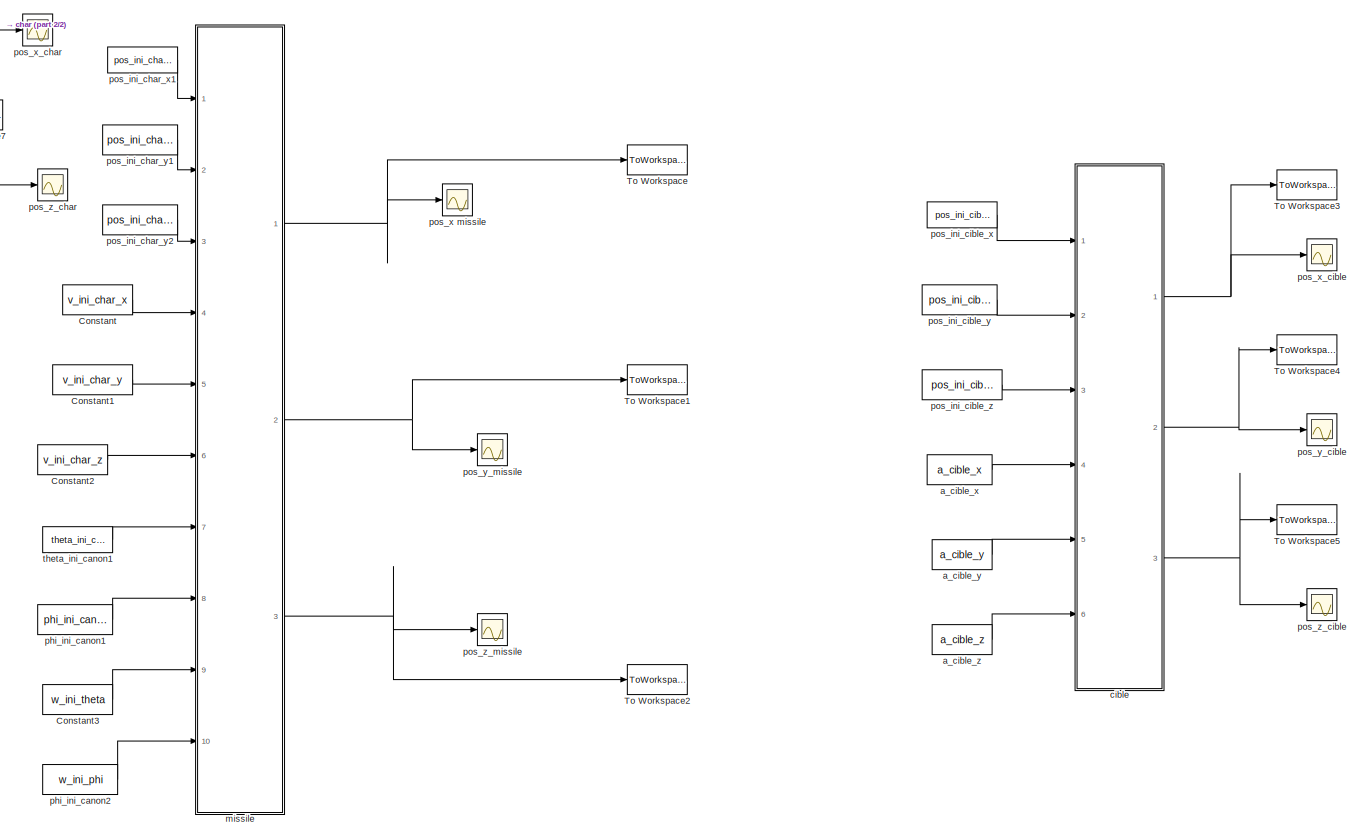
[diagram: root canvas - part 1/2, center side, full height]
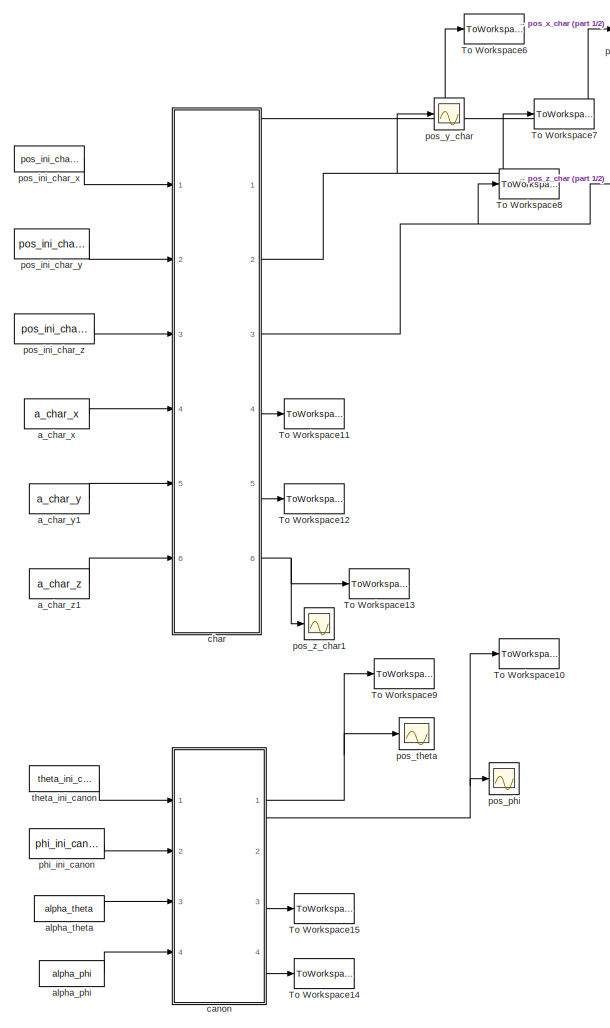
[diagram: root canvas - part 2/2, left side, full height]
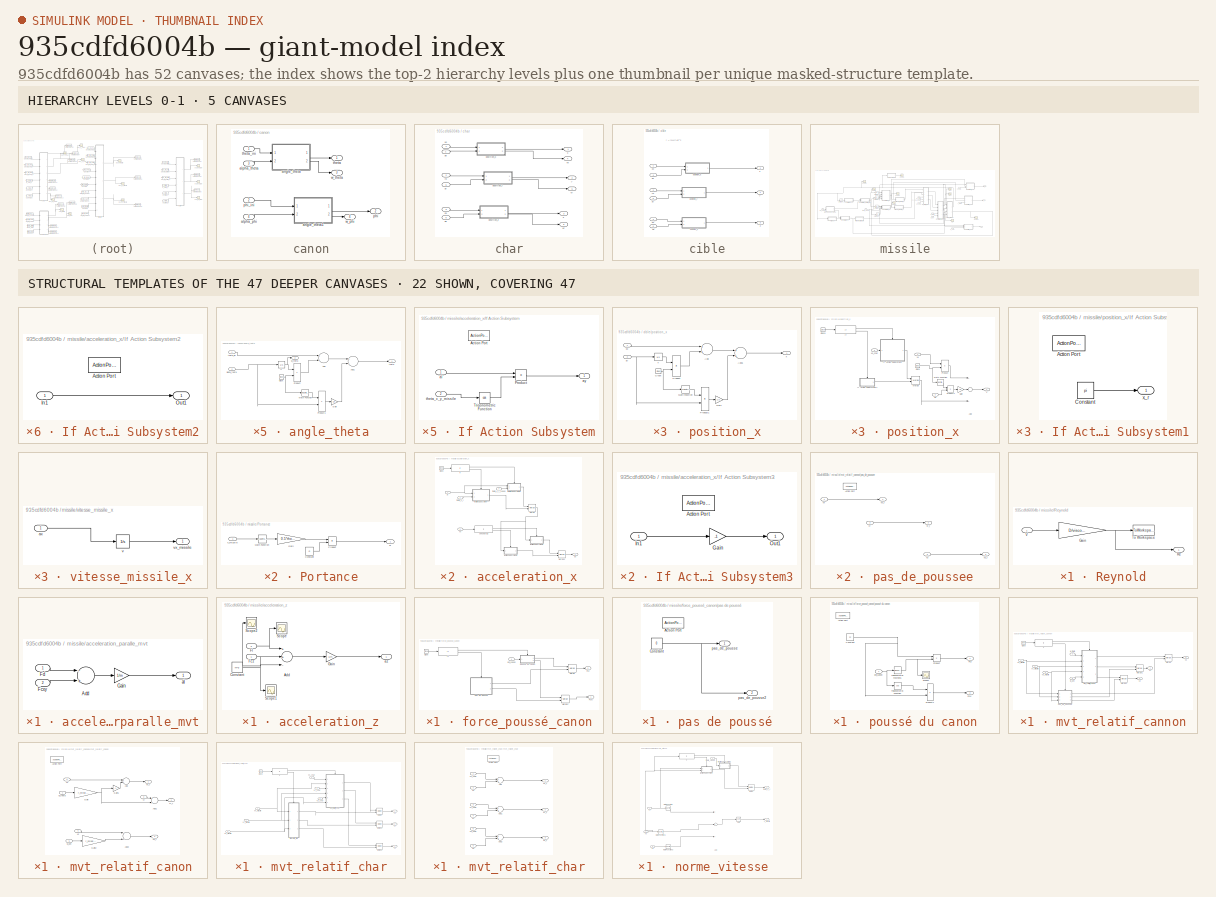
[diagram: thumbnail index - top-2 hierarchy levels (5 canvases) + 22 structural-template representatives of the remaining 47 canvases]
MODEL slx_935cdfd6004b
KIND model
CONFIG AbsTol = auto
CONFIG EnableMultiTasking = off
CONFIG FixedStep = auto
CONFIG InitFcn = variable
CONFIG MaxStep = auto
CONFIG MinStep = auto
CONFIG RelTol = 1e-2
CONFIG SampleTimeConstraint = Unconstrained
CONFIG Solver = VariableStepAuto
CONFIG SolverName = VariableStepAuto
CONFIG StartTime = 0.0
CONFIG StopTime = 1
BLOCK [Constant] Constant
  Value = v_ini_char_x
BLOCK [Constant] Constant1
  Value = v_ini_char_y
BLOCK [Constant] Constant2
  Value = v_ini_char_z
BLOCK [Constant] Constant3
  Value = w_ini_theta
BLOCK [ToWorkspace] To Workspace
  FixptAsFi = on
  MaxDataPoints = inf
  Ports = [1]
  SampleTime = -1
  Save2DSignal = 3-D array (concatenate along third dimension)
  SaveFormat = Timeseries
  VariableName = pos_missile_x
BLOCK [ToWorkspace] To Workspace1
  FixptAsFi = on
  MaxDataPoints = inf
  Ports = [1]
  SampleTime = -1
  Save2DSignal = 3-D array (concatenate along third dimension)
  SaveFormat = Timeseries
  VariableName = pos_missile_y
BLOCK [ToWorkspace] To Workspace10
  FixptAsFi = on
  MaxDataPoints = inf
  Ports = [1]
  SampleTime = -1
  Save2DSignal = 3-D array (concatenate along third dimension)
  SaveFormat = Timeseries
  VariableName = phi_canon
BLOCK [ToWorkspace] To Workspace11
  FixptAsFi = on
  MaxDataPoints = inf
  Ports = [1]
  SampleTime = -1
  Save2DSignal = 3-D array (concatenate along third dimension)
  SaveFormat = Timeseries
  VariableName = vx_char
BLOCK [ToWorkspace] To Workspace12
  FixptAsFi = on
  MaxDataPoints = inf
  Ports = [1]
  SampleTime = -1
  Save2DSignal = 3-D array (concatenate along third dimension)
  SaveFormat = Timeseries
  VariableName = vy_char
BLOCK [ToWorkspace] To Workspace13
  FixptAsFi = on
  MaxDataPoints = inf
  Ports = [1]
  SampleTime = -1
  Save2DSignal = 3-D array (concatenate along third dimension)
  SaveFormat = Timeseries
  VariableName = vz_char
BLOCK [ToWorkspace] To Workspace14
  FixptAsFi = on
  MaxDataPoints = inf
  Ports = [1]
  SampleTime = -1
  Save2DSignal = 3-D array (concatenate along third dimension)
  SaveFormat = Timeseries
  VariableName = w_phi
BLOCK [ToWorkspace] To Workspace15
  FixptAsFi = on
  MaxDataPoints = inf
  Ports = [1]
  SampleTime = -1
  Save2DSignal = 3-D array (concatenate along third dimension)
  SaveFormat = Timeseries
  VariableName = w_theta
BLOCK [ToWorkspace] To Workspace2
  FixptAsFi = on
  MaxDataPoints = inf
  Ports = [1]
  SampleTime = -1
  Save2DSignal = 3-D array (concatenate along third dimension)
  SaveFormat = Timeseries
  VariableName = pos_missile_z
BLOCK [ToWorkspace] To Workspace3
  FixptAsFi = on
  MaxDataPoints = inf
  Ports = [1]
  SampleTime = -1
  Save2DSignal = 3-D array (concatenate along third dimension)
  SaveFormat = Timeseries
  VariableName = pos_cible_x
BLOCK [ToWorkspace] To Workspace4
  FixptAsFi = on
  MaxDataPoints = inf
  Ports = [1]
  SampleTime = -1
  Save2DSignal = 3-D array (concatenate along third dimension)
  SaveFormat = Timeseries
  VariableName = pos_cible_y
BLOCK [ToWorkspace] To Workspace5
  FixptAsFi = on
  MaxDataPoints = inf
  Ports = [1]
  SampleTime = -1
  Save2DSignal = 3-D array (concatenate along third dimension)
  SaveFormat = Timeseries
  VariableName = pos_cible_z
BLOCK [ToWorkspace] To Workspace6
  FixptAsFi = on
  MaxDataPoints = inf
  Ports = [1]
  SampleTime = -1
  Save2DSignal = 3-D array (concatenate along third dimension)
  SaveFormat = Timeseries
  VariableName = pos_char_x
BLOCK [ToWorkspace] To Workspace7
  FixptAsFi = on
  MaxDataPoints = inf
  Ports = [1]
  SampleTime = -1
  Save2DSignal = 3-D array (concatenate along third dimension)
  SaveFormat = Timeseries
  VariableName = pos_char_y
BLOCK [ToWorkspace] To Workspace8
  FixptAsFi = on
  MaxDataPoints = inf
  Ports = [1]
  SampleTime = -1
  Save2DSignal = 3-D array (concatenate along third dimension)
  SaveFormat = Timeseries
  VariableName = pos_char_z
BLOCK [ToWorkspace] To Workspace9
  FixptAsFi = on
  MaxDataPoints = inf
  Ports = [1]
  SampleTime = -1
  Save2DSignal = 3-D array (concatenate along third dimension)
  SaveFormat = Timeseries
  VariableName = theta_canon
BLOCK [Constant] a_char_x
  Value = a_char_x
BLOCK [Constant] a_char_y1
  Value = a_char_y
BLOCK [Constant] a_char_z1
  Value = a_char_z
BLOCK [Constant] a_cible_x
  Value = a_cible_x
BLOCK [Constant] a_cible_y
  Value = a_cible_y
BLOCK [Constant] a_cible_z
  Value = a_cible_z
BLOCK [Constant] alpha_phi
  Value = alpha_phi
BLOCK [Constant] alpha_theta
  Value = alpha_theta
BLOCK [SubSystem] canon
  Ports = [4, 4]
  RequestExecContextInheritance = off
  TreatAsAtomicUnit = on
  Variant = off
BLOCK [Inport] canon/alpha_phi
  IconDisplay = Port number
  Port = 4
BLOCK [Inport] canon/alpha_theta
  IconDisplay = Port number
  Port = 3
BLOCK [SubSystem] canon/angle_theta
  Ports = [2, 2]
  RequestExecContextInheritance = off
  TreatAsAtomicUnit = on
  Variant = off
BLOCK [Sum] canon/angle_theta/Add
  InputSameDT = off
  OutDataTypeStr = Inherit: Inherit via internal rule
  Ports = [2, 1]
  SaturateOnIntegerOverflow = off
BLOCK [Sum] canon/angle_theta/Add1
  InputSameDT = off
  OutDataTypeStr = Inherit: Inherit via internal rule
  Ports = [2, 1]
  SaturateOnIntegerOverflow = off
BLOCK [Clock] canon/angle_theta/Clock
BLOCK [Gain] canon/angle_theta/Gain
  Gain = 1/2
  OutDataTypeStr = Inherit: Inherit via internal rule
  ParamDataTypeStr = Inherit: Inherit via internal rule
  SaturateOnIntegerOverflow = off
BLOCK [Math] canon/angle_theta/Math Function
  Operator = magnitude^2
  Ports = [1, 1]
BLOCK [Product] canon/angle_theta/Product
  InputSameDT = off
  OutDataTypeStr = Inherit: Inherit via internal rule
  Ports = [2, 1]
  RndMeth = Floor
  SaturateOnIntegerOverflow = off
BLOCK [Product] canon/angle_theta/Product1
  InputSameDT = off
  OutDataTypeStr = Inherit: Inherit via internal rule
  Ports = [2, 1]
  RndMeth = Floor
  SaturateOnIntegerOverflow = off
BLOCK [Inport] canon/angle_theta/alpha_theta
  IconDisplay = Port number
  Port = 2
BLOCK [Outport] canon/angle_theta/theta
  IconDisplay = Port number
BLOCK [Inport] canon/angle_theta/theta_ini
  IconDisplay = Port number
BLOCK [Integrator] canon/angle_theta/v
  InitialCondition = w_ini_theta
  Ports = [1, 1]
BLOCK [Outport] canon/angle_theta/w_theta
  IconDisplay = Port number
  Port = 2
BLOCK [SubSystem] canon/angle_theta1
  Ports = [2, 2]
  RequestExecContextInheritance = off
  TreatAsAtomicUnit = on
  Variant = off
BLOCK [Sum] canon/angle_theta1/Add
  InputSameDT = off
  OutDataTypeStr = Inherit: Inherit via internal rule
  Ports = [2, 1]
  SaturateOnIntegerOverflow = off
BLOCK [Sum] canon/angle_theta1/Add1
  InputSameDT = off
  OutDataTypeStr = Inherit: Inherit via internal rule
  Ports = [2, 1]
  SaturateOnIntegerOverflow = off
BLOCK [Clock] canon/angle_theta1/Clock
BLOCK [Gain] canon/angle_theta1/Gain
  Gain = 1/2
  OutDataTypeStr = Inherit: Inherit via internal rule
  ParamDataTypeStr = Inherit: Inherit via internal rule
  SaturateOnIntegerOverflow = off
BLOCK [Math] canon/angle_theta1/Math Function
  Operator = magnitude^2
  Ports = [1, 1]
BLOCK [Product] canon/angle_theta1/Product
  InputSameDT = off
  OutDataTypeStr = Inherit: Inherit via internal rule
  Ports = [2, 1]
  RndMeth = Floor
  SaturateOnIntegerOverflow = off
BLOCK [Product] canon/angle_theta1/Product1
  InputSameDT = off
  OutDataTypeStr = Inherit: Inherit via internal rule
  Ports = [2, 1]
  RndMeth = Floor
  SaturateOnIntegerOverflow = off
BLOCK [Inport] canon/angle_theta1/alpha_phi
  IconDisplay = Port number
  Port = 2
BLOCK [Outport] canon/angle_theta1/phi
  IconDisplay = Port number
BLOCK [Inport] canon/angle_theta1/phi_ini
  IconDisplay = Port number
BLOCK [Integrator] canon/angle_theta1/v
  InitialCondition = w_ini_phi
  Ports = [1, 1]
BLOCK [Outport] canon/angle_theta1/w_phi
  IconDisplay = Port number
  Port = 2
BLOCK [Outport] canon/phi
  IconDisplay = Port number
  Port = 2
BLOCK [Inport] canon/phi_ini
  IconDisplay = Port number
  Port = 2
BLOCK [Outport] canon/theta
  IconDisplay = Port number
BLOCK [Inport] canon/theta_ini
  IconDisplay = Port number
BLOCK [Outport] canon/w_phi
  IconDisplay = Port number
  Port = 4
BLOCK [Outport] canon/w_theta
  IconDisplay = Port number
  Port = 3
BLOCK [SubSystem] char
  Ports = [6, 6]
  RequestExecContextInheritance = off
  TreatAsAtomicUnit = on
  Variant = off
BLOCK [Inport] char/ax
  IconDisplay = Port number
  Port = 4
BLOCK [Inport] char/ay
  IconDisplay = Port number
  Port = 5
BLOCK [Inport] char/az
  IconDisplay = Port number
  Port = 6
BLOCK [SubSystem] char/position_x
  Ports = [2, 2]
  RequestExecContextInheritance = off
  TreatAsAtomicUnit = on
  Variant = off
BLOCK [Sum] char/position_x/Add
  InputSameDT = off
  OutDataTypeStr = Inherit: Inherit via internal rule
  Ports = [2, 1]
  SaturateOnIntegerOverflow = off
BLOCK [Sum] char/position_x/Add1
  InputSameDT = off
  OutDataTypeStr = Inherit: Inherit via internal rule
  Ports = [2, 1]
  SaturateOnIntegerOverflow = off
BLOCK [Clock] char/position_x/Clock
BLOCK [Gain] char/position_x/Gain
  Gain = 1/2
  OutDataTypeStr = Inherit: Inherit via internal rule
  ParamDataTypeStr = Inherit: Inherit via internal rule
  SaturateOnIntegerOverflow = off
BLOCK [Math] char/position_x/Math Function
  Operator = magnitude^2
  Ports = [1, 1]
BLOCK [Product] char/position_x/Product
  InputSameDT = off
  OutDataTypeStr = Inherit: Inherit via internal rule
  Ports = [2, 1]
  RndMeth = Floor
  SaturateOnIntegerOverflow = off
BLOCK [Product] char/position_x/Product1
  InputSameDT = off
  OutDataTypeStr = Inherit: Inherit via internal rule
  Ports = [2, 1]
  RndMeth = Floor
  SaturateOnIntegerOverflow = off
BLOCK [Inport] char/position_x/ay
  IconDisplay = Port number
  Port = 2
BLOCK [Integrator] char/position_x/v
  InitialCondition = v_ini_char_x
  Ports = [1, 1]
BLOCK [Outport] char/position_x/vx
  IconDisplay = Port number
  Port = 2
BLOCK [Outport] char/position_x/x
  IconDisplay = Port number
BLOCK [Inport] char/position_x/x0
  IconDisplay = Port number
BLOCK [SubSystem] char/position_y
  Ports = [2, 2]
  RequestExecContextInheritance = off
  TreatAsAtomicUnit = on
  Variant = off
BLOCK [Sum] char/position_y/Add
  InputSameDT = off
  OutDataTypeStr = Inherit: Inherit via internal rule
  Ports = [2, 1]
  SaturateOnIntegerOverflow = off
BLOCK [Sum] char/position_y/Add1
  InputSameDT = off
  OutDataTypeStr = Inherit: Inherit via internal rule
  Ports = [2, 1]
  SaturateOnIntegerOverflow = off
BLOCK [Clock] char/position_y/Clock
BLOCK [Gain] char/position_y/Gain
  Gain = 1/2
  OutDataTypeStr = Inherit: Inherit via internal rule
  ParamDataTypeStr = Inherit: Inherit via internal rule
  SaturateOnIntegerOverflow = off
BLOCK [Math] char/position_y/Math Function
  Operator = magnitude^2
  Ports = [1, 1]
BLOCK [Product] char/position_y/Product
  InputSameDT = off
  OutDataTypeStr = Inherit: Inherit via internal rule
  Ports = [2, 1]
  RndMeth = Floor
  SaturateOnIntegerOverflow = off
BLOCK [Product] char/position_y/Product1
  InputSameDT = off
  OutDataTypeStr = Inherit: Inherit via internal rule
  Ports = [2, 1]
  RndMeth = Floor
  SaturateOnIntegerOverflow = off
BLOCK [Inport] char/position_y/ay
  IconDisplay = Port number
  Port = 2
BLOCK [Integrator] char/position_y/v
  InitialCondition = v_ini_char_y
  Ports = [1, 1]
BLOCK [Outport] char/position_y/vy
  IconDisplay = Port number
  Port = 2
BLOCK [Outport] char/position_y/y
  IconDisplay = Port number
BLOCK [Inport] char/position_y/y0
  IconDisplay = Port number
BLOCK [SubSystem] char/position_z
  Ports = [2, 2]
  RequestExecContextInheritance = off
  TreatAsAtomicUnit = on
  Variant = off
BLOCK [Sum] char/position_z/Add
  InputSameDT = off
  OutDataTypeStr = Inherit: Inherit via internal rule
  Ports = [2, 1]
  SaturateOnIntegerOverflow = off
BLOCK [Sum] char/position_z/Add1
  InputSameDT = off
  OutDataTypeStr = Inherit: Inherit via internal rule
  Ports = [2, 1]
  SaturateOnIntegerOverflow = off
BLOCK [Clock] char/position_z/Clock
BLOCK [Gain] char/position_z/Gain
  Gain = 1/2
  OutDataTypeStr = Inherit: Inherit via internal rule
  ParamDataTypeStr = Inherit: Inherit via internal rule
  SaturateOnIntegerOverflow = off
BLOCK [Math] char/position_z/Math Function
  Operator = magnitude^2
  Ports = [1, 1]
BLOCK [Product] char/position_z/Product
  InputSameDT = off
  OutDataTypeStr = Inherit: Inherit via internal rule
  Ports = [2, 1]
  RndMeth = Floor
  SaturateOnIntegerOverflow = off
BLOCK [Product] char/position_z/Product1
  InputSameDT = off
  OutDataTypeStr = Inherit: Inherit via internal rule
  Ports = [2, 1]
  RndMeth = Floor
  SaturateOnIntegerOverflow = off
BLOCK [Inport] char/position_z/az
  IconDisplay = Port number
  Port = 2
BLOCK [Integrator] char/position_z/v
  InitialCondition = v_ini_char_z
  Ports = [1, 1]
BLOCK [Outport] char/position_z/vz
  IconDisplay = Port number
  Port = 2
BLOCK [Outport] char/position_z/z
  IconDisplay = Port number
BLOCK [Inport] char/position_z/z0
  IconDisplay = Port number
BLOCK [Outport] char/vx
  IconDisplay = Port number
  Port = 4
BLOCK [Outport] char/vy
  IconDisplay = Port number
  Port = 5
BLOCK [Outport] char/vz
  IconDisplay = Port number
  Port = 6
BLOCK [Outport] char/x
  IconDisplay = Port number
BLOCK [Inport] char/x0
  IconDisplay = Port number
BLOCK [Outport] char/y
  IconDisplay = Port number
  Port = 2
BLOCK [Inport] char/y0
  IconDisplay = Port number
  Port = 2
BLOCK [Outport] char/z
  IconDisplay = Port number
  Port = 3
BLOCK [Inport] char/z0
  IconDisplay = Port number
  Port = 3
BLOCK [SubSystem] cible
  Ports = [6, 3]
  RequestExecContextInheritance = off
  TreatAsAtomicUnit = on
  Variant = off
BLOCK [Inport] cible/ax
  IconDisplay = Port number
  Port = 4
BLOCK [Inport] cible/ay
  IconDisplay = Port number
  Port = 5
BLOCK [Inport] cible/az
  IconDisplay = Port number
  Port = 6
BLOCK [SubSystem] cible/position_x
  Ports = [2, 1]
  RequestExecContextInheritance = off
  TreatAsAtomicUnit = on
  Variant = off
BLOCK [Sum] cible/position_x/Add
  InputSameDT = off
  OutDataTypeStr = Inherit: Inherit via internal rule
  Ports = [2, 1]
  SaturateOnIntegerOverflow = off
BLOCK [Sum] cible/position_x/Add1
  InputSameDT = off
  OutDataTypeStr = Inherit: Inherit via internal rule
  Ports = [2, 1]
  SaturateOnIntegerOverflow = off
BLOCK [Clock] cible/position_x/Clock
BLOCK [Gain] cible/position_x/Gain
  Gain = 1/2
  OutDataTypeStr = Inherit: Inherit via internal rule
  ParamDataTypeStr = Inherit: Inherit via internal rule
  SaturateOnIntegerOverflow = off
BLOCK [Math] cible/position_x/Math Function
  Operator = magnitude^2
  Ports = [1, 1]
BLOCK [Product] cible/position_x/Product
  InputSameDT = off
  OutDataTypeStr = Inherit: Inherit via internal rule
  Ports = [2, 1]
  RndMeth = Floor
  SaturateOnIntegerOverflow = off
BLOCK [Product] cible/position_x/Product1
  InputSameDT = off
  OutDataTypeStr = Inherit: Inherit via internal rule
  Ports = [2, 1]
  RndMeth = Floor
  SaturateOnIntegerOverflow = off
BLOCK [Inport] cible/position_x/ay
  IconDisplay = Port number
  Port = 2
BLOCK [Integrator] cible/position_x/v
  InitialCondition = v_ini_cible_x
  Ports = [1, 1]
BLOCK [Outport] cible/position_x/x
  IconDisplay = Port number
BLOCK [Inport] cible/position_x/x0
  IconDisplay = Port number
BLOCK [SubSystem] cible/position_y
  Ports = [2, 1]
  RequestExecContextInheritance = off
  TreatAsAtomicUnit = on
  Variant = off
BLOCK [Sum] cible/position_y/Add
  InputSameDT = off
  OutDataTypeStr = Inherit: Inherit via internal rule
  Ports = [2, 1]
  SaturateOnIntegerOverflow = off
BLOCK [Sum] cible/position_y/Add1
  InputSameDT = off
  OutDataTypeStr = Inherit: Inherit via internal rule
  Ports = [2, 1]
  SaturateOnIntegerOverflow = off
BLOCK [Clock] cible/position_y/Clock
BLOCK [Gain] cible/position_y/Gain
  Gain = 1/2
  OutDataTypeStr = Inherit: Inherit via internal rule
  ParamDataTypeStr = Inherit: Inherit via internal rule
  SaturateOnIntegerOverflow = off
BLOCK [Math] cible/position_y/Math Function
  Operator = magnitude^2
  Ports = [1, 1]
BLOCK [Product] cible/position_y/Product
  InputSameDT = off
  OutDataTypeStr = Inherit: Inherit via internal rule
  Ports = [2, 1]
  RndMeth = Floor
  SaturateOnIntegerOverflow = off
BLOCK [Product] cible/position_y/Product1
  InputSameDT = off
  OutDataTypeStr = Inherit: Inherit via internal rule
  Ports = [2, 1]
  RndMeth = Floor
  SaturateOnIntegerOverflow = off
BLOCK [Inport] cible/position_y/ay
  IconDisplay = Port number
  Port = 2
BLOCK [Integrator] cible/position_y/v
  InitialCondition = v_ini_cible_y
  Ports = [1, 1]
BLOCK [Outport] cible/position_y/y
  IconDisplay = Port number
BLOCK [Inport] cible/position_y/y0
  IconDisplay = Port number
BLOCK [SubSystem] cible/position_z
  Ports = [2, 1]
  RequestExecContextInheritance = off
  TreatAsAtomicUnit = on
  Variant = off
BLOCK [Sum] cible/position_z/Add
  InputSameDT = off
  OutDataTypeStr = Inherit: Inherit via internal rule
  Ports = [2, 1]
  SaturateOnIntegerOverflow = off
BLOCK [Sum] cible/position_z/Add1
  InputSameDT = off
  OutDataTypeStr = Inherit: Inherit via internal rule
  Ports = [2, 1]
  SaturateOnIntegerOverflow = off
BLOCK [Clock] cible/position_z/Clock
BLOCK [Gain] cible/position_z/Gain
  Gain = 1/2
  OutDataTypeStr = Inherit: Inherit via internal rule
  ParamDataTypeStr = Inherit: Inherit via internal rule
  SaturateOnIntegerOverflow = off
BLOCK [Math] cible/position_z/Math Function
  Operator = magnitude^2
  Ports = [1, 1]
BLOCK [Product] cible/position_z/Product
  InputSameDT = off
  OutDataTypeStr = Inherit: Inherit via internal rule
  Ports = [2, 1]
  RndMeth = Floor
  SaturateOnIntegerOverflow = off
BLOCK [Product] cible/position_z/Product1
  InputSameDT = off
  OutDataTypeStr = Inherit: Inherit via internal rule
  Ports = [2, 1]
  RndMeth = Floor
  SaturateOnIntegerOverflow = off
BLOCK [Inport] cible/position_z/az
  IconDisplay = Port number
  Port = 2
BLOCK [Integrator] cible/position_z/v
  InitialCondition = v_ini_cible_z
  Ports = [1, 1]
BLOCK [Outport] cible/position_z/z
  IconDisplay = Port number
BLOCK [Inport] cible/position_z/z0
  IconDisplay = Port number
BLOCK [Outport] cible/x
  IconDisplay = Port number
  Port = 2
BLOCK [Inport] cible/x0
  IconDisplay = Port number
BLOCK [Outport] cible/y
  IconDisplay = Port number
BLOCK [Inport] cible/y0
  IconDisplay = Port number
  Port = 2
BLOCK [Outport] cible/z
  IconDisplay = Port number
  Port = 3
BLOCK [Inport] cible/z0
  IconDisplay = Port number
  Port = 3
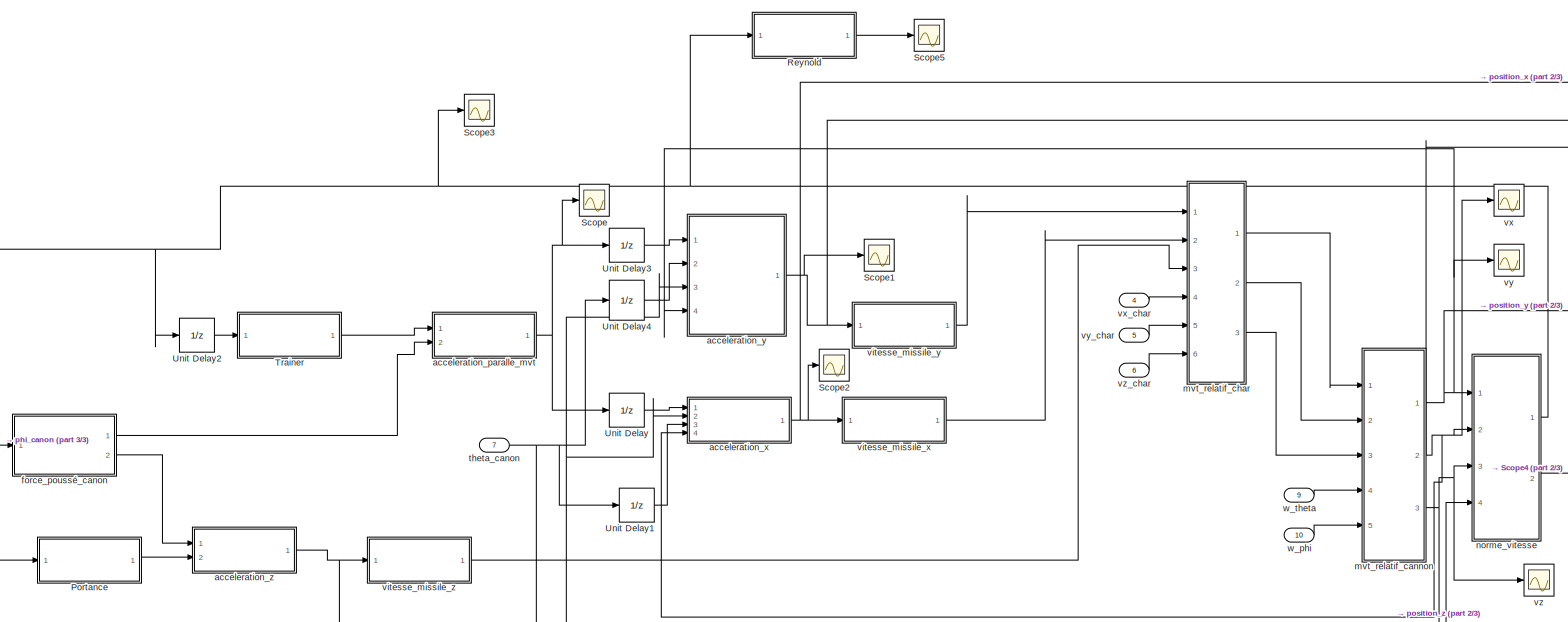
[diagram: missile - part 1/3, most of the canvas]
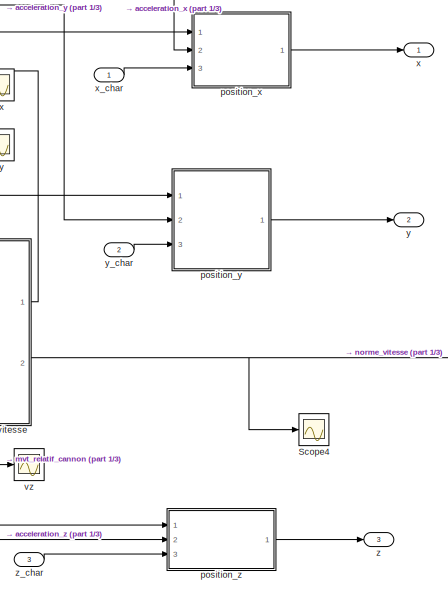
[diagram: missile - part 2/3, right side, full height]
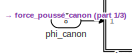
[diagram: missile - part 3/3, middle left region]
BLOCK [SubSystem] missile
  Ports = [10, 3]
  RequestExecContextInheritance = off
  TreatAsAtomicUnit = on
  Variant = off
BLOCK [SubSystem] missile/Portance
  Ports = [1, 1]
  RequestExecContextInheritance = off
  TreatAsAtomicUnit = on
  Variant = off
BLOCK [Constant] missile/Portance/Constant
  Value = Cl
BLOCK [Outport] missile/Portance/Fl
  IconDisplay = Port number
BLOCK [Gain] missile/Portance/Gain
  Gain = 0.5*rho*A
  OutDataTypeStr = Inherit: Inherit via internal rule
  ParamDataTypeStr = Inherit: Inherit via internal rule
  SaturateOnIntegerOverflow = off
BLOCK [Math] missile/Portance/Math Function
  Operator = magnitude^2
  Ports = [1, 1]
BLOCK [Product] missile/Portance/Product
  InputSameDT = off
  OutDataTypeStr = Inherit: Inherit via internal rule
  Ports = [2, 1]
  RndMeth = Floor
  SaturateOnIntegerOverflow = off
BLOCK [Inport] missile/Portance/v_missile
  IconDisplay = Port number
BLOCK [SubSystem] missile/Reynold
  Ports = [1, 1]
  RequestExecContextInheritance = off
  TreatAsAtomicUnit = on
  Variant = off
BLOCK [Gain] missile/Reynold/Gain
  Gain = D/viscosite
  OutDataTypeStr = Inherit: Inherit via internal rule
  ParamDataTypeStr = Inherit: Inherit via internal rule
  SaturateOnIntegerOverflow = off
BLOCK [Outport] missile/Reynold/Re
  IconDisplay = Port number
BLOCK [ToWorkspace] missile/Reynold/To Workspace
  FixptAsFi = on
  MaxDataPoints = inf
  Ports = [1]
  SampleTime = -1
  Save2DSignal = 3-D array (concatenate along third dimension)
  SaveFormat = Timeseries
  VariableName = Re
BLOCK [Inport] missile/Reynold/V
  IconDisplay = Port number
BLOCK [Scope] missile/Scope
  NumInputPorts = 1
  Ports = [1]
  ScopeSpecificationString = Simulink.scopes.TimeScopeBlockCfg('CurrentConfiguration', extmgr.ConfigurationSet(extmgr.Configuration('Core','General UI',true),extmgr.Configuration('Core','Source UI',true),extmgr.Configuration('Sources','WiredSimulink',true,'DataLoggingVariableName','ScopeData1'),extmgr.Configuration('Visuals','Time Domain',true,'SerializedDisplays',{struct('MinYLimReal','-4368.70521','MaxYLimReal','485.41169',...<+1505ch>
BLOCK [Scope] missile/Scope1
  NumInputPorts = 1
  Ports = [1]
  ScopeSpecificationString = Simulink.scopes.TimeScopeBlockCfg('CurrentConfiguration', extmgr.ConfigurationSet(extmgr.Configuration('Core','General UI',true),extmgr.Configuration('Core','Source UI',true),extmgr.Configuration('Sources','WiredSimulink',true,'DataLoggingVariableName','ScopeData2'),extmgr.Configuration('Visuals','Time Domain',true,'SerializedDisplays',{struct('MinYLimReal','-2.27601','MaxYLimReal','4.53069','YLab...<+1425ch>
BLOCK [Scope] missile/Scope2
  NumInputPorts = 1
  Ports = [1]
  ScopeSpecificationString = Simulink.scopes.TimeScopeBlockCfg('CurrentConfiguration', extmgr.ConfigurationSet(extmgr.Configuration('Core','General UI',true),extmgr.Configuration('Core','Source UI',true),extmgr.Configuration('Sources','WiredSimulink',true,'DataLoggingVariableName','ScopeData3'),extmgr.Configuration('Visuals','Time Domain',true,'SerializedDisplays',{struct('MinYLimReal','-877.96819','MaxYLimReal','877.96819','...<+1418ch>
BLOCK [Scope] missile/Scope3
  NumInputPorts = 1
  Ports = [1]
  ScopeSpecificationString = Simulink.scopes.TimeScopeBlockCfg('CurrentConfiguration', extmgr.ConfigurationSet(extmgr.Configuration('Core','General UI',true),extmgr.Configuration('Core','Source UI',true),extmgr.Configuration('Sources','WiredSimulink',true,'DataLoggingVariableName','ScopeData4'),extmgr.Configuration('Visuals','Time Domain',true,'SerializedDisplays',{struct('MinYLimReal','-7.34062','MaxYLimReal','66.06561','YLa...<+1434ch>
BLOCK [Scope] missile/Scope4
  NumInputPorts = 1
  Ports = [1]
  ScopeSpecificationString = Simulink.scopes.TimeScopeBlockCfg('CurrentConfiguration', extmgr.ConfigurationSet(extmgr.Configuration('Core','General UI',true),extmgr.Configuration('Core','Source UI',true),extmgr.Configuration('Sources','WiredSimulink',true,'DataLoggingVariableName','ScopeData4'),extmgr.Configuration('Visuals','Time Domain',true,'SerializedDisplays',{struct('MinYLimReal','-1.53018','MaxYLimReal','1.28113','YLab...<+1400ch>
BLOCK [Scope] missile/Scope5
  NumInputPorts = 1
  Ports = [1]
  ScopeSpecificationString = Simulink.scopes.TimeScopeBlockCfg('CurrentConfiguration', extmgr.ConfigurationSet(extmgr.Configuration('Core','General UI',true),extmgr.Configuration('Core','Source UI',true),extmgr.Configuration('Sources','WiredSimulink',true,'DataLoggingVariableName','ScopeData1'),extmgr.Configuration('Visuals','Time Domain',true),extmgr.Configuration('Tools','Plot Navigation',true),extmgr.Configuration('Tools',...<+40ch>
BLOCK [SubSystem] missile/Trainer
  Ports = [1, 1]
  RequestExecContextInheritance = off
  TreatAsAtomicUnit = on
  Variant = off
BLOCK [Constant] missile/Trainer/Constant
  Value = Cd
BLOCK [Outport] missile/Trainer/Fd
  IconDisplay = Port number
BLOCK [Gain] missile/Trainer/Gain
  Gain = 0.5*rho*A
  OutDataTypeStr = Inherit: Inherit via internal rule
  ParamDataTypeStr = Inherit: Inherit via internal rule
  SaturateOnIntegerOverflow = off
BLOCK [Math] missile/Trainer/Math Function
  Operator = magnitude^2
  Ports = [1, 1]
BLOCK [Product] missile/Trainer/Product
  InputSameDT = off
  OutDataTypeStr = Inherit: Inherit via internal rule
  Ports = [2, 1]
  RndMeth = Floor
  SaturateOnIntegerOverflow = off
BLOCK [Inport] missile/Trainer/v_missile
  IconDisplay = Port number
BLOCK [UnitDelay] missile/Unit Delay
  InputProcessing = Elements as channels (sample based)
  SampleTime = -1
BLOCK [UnitDelay] missile/Unit Delay1
  InputProcessing = Elements as channels (sample based)
  SampleTime = -1
BLOCK [UnitDelay] missile/Unit Delay2
  InputProcessing = Elements as channels (sample based)
  SampleTime = -1
BLOCK [UnitDelay] missile/Unit Delay3
  InputProcessing = Elements as channels (sample based)
  SampleTime = -1
BLOCK [UnitDelay] missile/Unit Delay4
  InputProcessing = Elements as channels (sample based)
  SampleTime = -1
BLOCK [SubSystem] missile/acceleration_paralle_mvt
  Ports = [2, 1]
  RequestExecContextInheritance = off
  TreatAsAtomicUnit = on
  Variant = off
BLOCK [Sum] missile/acceleration_paralle_mvt/Add
  InputSameDT = off
  Inputs = -+
  OutDataTypeStr = Inherit: Inherit via internal rule
  Ports = [2, 1]
  SaturateOnIntegerOverflow = off
BLOCK [Inport] missile/acceleration_paralle_mvt/Fcxy
  IconDisplay = Port number
  Port = 2
BLOCK [Inport] missile/acceleration_paralle_mvt/Fd
  IconDisplay = Port number
BLOCK [Gain] missile/acceleration_paralle_mvt/Gain
  Gain = 1/m
  OutDataTypeStr = Inherit: Inherit via internal rule
  ParamDataTypeStr = Inherit: Inherit via internal rule
  SaturateOnIntegerOverflow = off
BLOCK [Outport] missile/acceleration_paralle_mvt/al
  IconDisplay = Port number
BLOCK [SubSystem] missile/acceleration_x
  Ports = [4, 1]
  RequestExecContextInheritance = off
  TreatAsAtomicUnit = on
  Variant = off
BLOCK [Clock] missile/acceleration_x/Clock
BLOCK [If] missile/acceleration_x/If
  IfExpression = u1 == 0
  Ports = [1, 2]
BLOCK [SubSystem] missile/acceleration_x/If Action Subsystem
  Ports = [2, 1, 0, 0, 0, 0, 0, 1]
  RequestExecContextInheritance = off
  TreatAsAtomicUnit = on
  Variant = off
BLOCK [ActionPort] missile/acceleration_x/If Action Subsystem/Action Port
  ActionType = else
BLOCK [Product] missile/acceleration_x/If Action Subsystem/Product
  InputSameDT = off
  OutDataTypeStr = Inherit: Inherit via internal rule
  Ports = [2, 1]
  RndMeth = Floor
  SaturateOnIntegerOverflow = off
BLOCK [Trigonometry] missile/acceleration_x/If Action Subsystem/Trigonometric Function
  Operator = cos
  Ports = [1, 1]
BLOCK [Inport] missile/acceleration_x/If Action Subsystem/al
  IconDisplay = Port number
BLOCK [Outport] missile/acceleration_x/If Action Subsystem/ay
  IconDisplay = Port number
BLOCK [Inport] missile/acceleration_x/If Action Subsystem/theta_x_y_missile
  IconDisplay = Port number
  Port = 2
BLOCK [SubSystem] missile/acceleration_x/If Action Subsystem1
  Ports = [2, 1, 0, 0, 0, 0, 0, 1]
  RequestExecContextInheritance = off
  TreatAsAtomicUnit = on
  Variant = off
BLOCK [ActionPort] missile/acceleration_x/If Action Subsystem1/Action Port
  ActionType = then
BLOCK [Product] missile/acceleration_x/If Action Subsystem1/Product
  InputSameDT = off
  OutDataTypeStr = Inherit: Inherit via internal rule
  Ports = [2, 1]
  RndMeth = Floor
  SaturateOnIntegerOverflow = off
BLOCK [Trigonometry] missile/acceleration_x/If Action Subsystem1/Trigonometric Function
  Operator = cos
  Ports = [1, 1]
BLOCK [Inport] missile/acceleration_x/If Action Subsystem1/al
  IconDisplay = Port number
BLOCK [Outport] missile/acceleration_x/If Action Subsystem1/ay
  IconDisplay = Port number
BLOCK [Inport] missile/acceleration_x/If Action Subsystem1/theta_canon
  IconDisplay = Port number
  Port = 2
BLOCK [SubSystem] missile/acceleration_x/If Action Subsystem2
  Ports = [1, 1, 0, 0, 0, 0, 0, 1]
  RequestExecContextInheritance = off
  TreatAsAtomicUnit = on
  Variant = off
BLOCK [ActionPort] missile/acceleration_x/If Action Subsystem2/Action Port
  ActionType = then
BLOCK [Inport] missile/acceleration_x/If Action Subsystem2/In1
  IconDisplay = Port number
BLOCK [Outport] missile/acceleration_x/If Action Subsystem2/Out1
  IconDisplay = Port number
BLOCK [SubSystem] missile/acceleration_x/If Action Subsystem3
  Ports = [1, 1, 0, 0, 0, 0, 0, 1]
  RequestExecContextInheritance = off
  TreatAsAtomicUnit = on
  Variant = off
BLOCK [ActionPort] missile/acceleration_x/If Action Subsystem3/Action Port
  ActionType = else
BLOCK [Gain] missile/acceleration_x/If Action Subsystem3/Gain
  Gain = -1
  OutDataTypeStr = Inherit: Inherit via internal rule
  ParamDataTypeStr = Inherit: Inherit via internal rule
  SaturateOnIntegerOverflow = off
BLOCK [Inport] missile/acceleration_x/If Action Subsystem3/In1
  IconDisplay = Port number
BLOCK [Outport] missile/acceleration_x/If Action Subsystem3/Out1
  IconDisplay = Port number
BLOCK [Merge] missile/acceleration_x/Merge
  Ports = [2, 1]
BLOCK [Merge] missile/acceleration_x/Merge1
  Ports = [2, 1]
BLOCK [Inport] missile/acceleration_x/al
  IconDisplay = Port number
BLOCK [Outport] missile/acceleration_x/ax
  IconDisplay = Port number
BLOCK [If] missile/acceleration_x/sense drag
  Ports = [1, 2]
  ZeroCross = off
BLOCK [Inport] missile/acceleration_x/theta_x_y
  IconDisplay = Port number
  Port = 2
BLOCK [Inport] missile/acceleration_x/theta_x_y_canon
  IconDisplay = Port number
  Port = 3
BLOCK [Inport] missile/acceleration_x/vx
  IconDisplay = Port number
  Port = 4
BLOCK [SubSystem] missile/acceleration_y
  Ports = [4, 1]
  RequestExecContextInheritance = off
  TreatAsAtomicUnit = on
  Variant = off
BLOCK [Clock] missile/acceleration_y/Clock
BLOCK [If] missile/acceleration_y/If
  IfExpression = u1 == 0
  Ports = [1, 2]
BLOCK [SubSystem] missile/acceleration_y/If Action Subsystem
  Ports = [2, 1, 0, 0, 0, 0, 0, 1]
  RequestExecContextInheritance = off
  TreatAsAtomicUnit = on
  Variant = off
BLOCK [ActionPort] missile/acceleration_y/If Action Subsystem/Action Port
  ActionType = else
BLOCK [Product] missile/acceleration_y/If Action Subsystem/Product
  InputSameDT = off
  OutDataTypeStr = Inherit: Inherit via internal rule
  Ports = [2, 1]
  RndMeth = Floor
  SaturateOnIntegerOverflow = off
BLOCK [Trigonometry] missile/acceleration_y/If Action Subsystem/Trigonometric Function
  Ports = [1, 1]
BLOCK [Inport] missile/acceleration_y/If Action Subsystem/al
  IconDisplay = Port number
BLOCK [Outport] missile/acceleration_y/If Action Subsystem/ay
  IconDisplay = Port number
BLOCK [Inport] missile/acceleration_y/If Action Subsystem/theta_x_y_missile
  IconDisplay = Port number
  Port = 2
BLOCK [SubSystem] missile/acceleration_y/If Action Subsystem1
  Ports = [2, 1, 0, 0, 0, 0, 0, 1]
  RequestExecContextInheritance = off
  TreatAsAtomicUnit = on
  Variant = off
BLOCK [ActionPort] missile/acceleration_y/If Action Subsystem1/Action Port
  ActionType = then
BLOCK [Product] missile/acceleration_y/If Action Subsystem1/Product
  InputSameDT = off
  OutDataTypeStr = Inherit: Inherit via internal rule
  Ports = [2, 1]
  RndMeth = Floor
  SaturateOnIntegerOverflow = off
BLOCK [Trigonometry] missile/acceleration_y/If Action Subsystem1/Trigonometric Function
  Ports = [1, 1]
BLOCK [Inport] missile/acceleration_y/If Action Subsystem1/al
  IconDisplay = Port number
BLOCK [Outport] missile/acceleration_y/If Action Subsystem1/ay
  IconDisplay = Port number
BLOCK [Inport] missile/acceleration_y/If Action Subsystem1/theta_canon
  IconDisplay = Port number
  Port = 2
BLOCK [Merge] missile/acceleration_y/Merge
  Ports = [2, 1]
BLOCK [Merge] missile/acceleration_y/Merge1
  Ports = [2, 1]
BLOCK [Inport] missile/acceleration_y/al
  IconDisplay = Port number
BLOCK [Outport] missile/acceleration_y/ay
  IconDisplay = Port number
BLOCK [SubSystem] missile/acceleration_y/négatif
  Ports = [1, 1, 0, 0, 0, 0, 0, 1]
  RequestExecContextInheritance = off
  TreatAsAtomicUnit = on
  Variant = off
BLOCK [ActionPort] missile/acceleration_y/négatif/Action Port
  ActionType = else
BLOCK [Gain] missile/acceleration_y/négatif/Gain
  Gain = -1
  OutDataTypeStr = Inherit: Inherit via internal rule
  ParamDataTypeStr = Inherit: Inherit via internal rule
  SaturateOnIntegerOverflow = off
BLOCK [Inport] missile/acceleration_y/négatif/In1
  IconDisplay = Port number
BLOCK [Outport] missile/acceleration_y/négatif/Out1
  IconDisplay = Port number
BLOCK [SubSystem] missile/acceleration_y/positf
  Ports = [1, 1, 0, 0, 0, 0, 0, 1]
  RequestExecContextInheritance = off
  TreatAsAtomicUnit = on
  Variant = off
BLOCK [ActionPort] missile/acceleration_y/positf/Action Port
  ActionType = then
BLOCK [Inport] missile/acceleration_y/positf/In1
  IconDisplay = Port number
BLOCK [Outport] missile/acceleration_y/positf/Out1
  IconDisplay = Port number
BLOCK [If] missile/acceleration_y/sense drag
  IfExpression = u1 >0
  Ports = [1, 2]
  ZeroCross = off
BLOCK [Inport] missile/acceleration_y/theta_x_y_canon
  IconDisplay = Port number
  Port = 2
BLOCK [Inport] missile/acceleration_y/theta_x_y_missile
  IconDisplay = Port number
  Port = 3
BLOCK [Inport] missile/acceleration_y/vy
  IconDisplay = Port number
  Port = 4
BLOCK [SubSystem] missile/acceleration_z
  Ports = [2, 1]
  RequestExecContextInheritance = off
  TreatAsAtomicUnit = on
  Variant = off
BLOCK [Sum] missile/acceleration_z/Add
  InputSameDT = off
  Inputs = ++-
  OutDataTypeStr = Inherit: Inherit via internal rule
  Ports = [3, 1]
  SaturateOnIntegerOverflow = off
BLOCK [Constant] missile/acceleration_z/Constant
  Value = m*g
BLOCK [Inport] missile/acceleration_z/Fcz
  IconDisplay = Port number
BLOCK [Inport] missile/acceleration_z/Fl
  IconDisplay = Port number
  Port = 2
BLOCK [Gain] missile/acceleration_z/Gain
  Gain = 1/m
  OutDataTypeStr = Inherit: Inherit via internal rule
  ParamDataTypeStr = Inherit: Inherit via internal rule
  SaturateOnIntegerOverflow = off
BLOCK [Scope] missile/acceleration_z/Scope
  NumInputPorts = 1
  Ports = [1]
  ScopeSpecificationString = Simulink.scopes.TimeScopeBlockCfg('CurrentConfiguration', extmgr.ConfigurationSet(extmgr.Configuration('Core','General UI',true),extmgr.Configuration('Core','Source UI',true),extmgr.Configuration('Sources','WiredSimulink',true,'DataLoggingVariableName','ScopeData1'),extmgr.Configuration('Visuals','Time Domain',true,'SerializedDisplays',{struct('MinYLimReal','-23506819020529968000000000000000000000...<+2736ch>
BLOCK [Scope] missile/acceleration_z/Scope1
  NumInputPorts = 1
  Ports = [1]
  ScopeSpecificationString = Simulink.scopes.TimeScopeBlockCfg('CurrentConfiguration', extmgr.ConfigurationSet(extmgr.Configuration('Core','General UI',true),extmgr.Configuration('Core','Source UI',true),extmgr.Configuration('Sources','WiredSimulink',true,'DataLoggingVariableName','ScopeData3'),extmgr.Configuration('Visuals','Time Domain',true,'SerializedDisplays',{struct('MinYLimReal','39.05','MaxYLimReal','59.05','YLabelRea...<+1349ch>
BLOCK [Scope] missile/acceleration_z/Scope2
  NumInputPorts = 1
  Ports = [1]
  ScopeSpecificationString = Simulink.scopes.TimeScopeBlockCfg('CurrentConfiguration', extmgr.ConfigurationSet(extmgr.Configuration('Core','General UI',true),extmgr.Configuration('Core','Source UI',true),extmgr.Configuration('Sources','WiredSimulink',true,'DataLoggingVariableName','ScopeData4'),extmgr.Configuration('Visuals','Time Domain',true,'SerializedDisplays',{struct('MinYLimReal','-970.50406','MaxYLimReal','8734.53651',...<+1409ch>
BLOCK [Outport] missile/acceleration_z/az
  IconDisplay = Port number
BLOCK [SubSystem] missile/force_poussé_canon
  Ports = [1, 2]
  RequestExecContextInheritance = off
  TreatAsAtomicUnit = on
  Variant = off
BLOCK [Clock] missile/force_poussé_canon/Clock
BLOCK [Outport] missile/force_poussé_canon/Fcxy
  IconDisplay = Port number
BLOCK [Outport] missile/force_poussé_canon/Fcz
  IconDisplay = Port number
  Port = 2
BLOCK [If] missile/force_poussé_canon/If
  IfExpression = u1 ==0
  Ports = [1, 2]
  ZeroCross = off
BLOCK [Merge] missile/force_poussé_canon/Merge
  Ports = [2, 1]
BLOCK [Merge] missile/force_poussé_canon/Merge1
  Ports = [2, 1]
BLOCK [SubSystem] missile/force_poussé_canon/pas de poussé
  Ports = [0, 2, 0, 0, 0, 0, 0, 1]
  RequestExecContextInheritance = off
  TreatAsAtomicUnit = on
  Variant = off
BLOCK [ActionPort] missile/force_poussé_canon/pas de poussé/Action Port
  ActionType = else
BLOCK [Constant] missile/force_poussé_canon/pas de poussé/Constant
  Value = 0
BLOCK [Outport] missile/force_poussé_canon/pas de poussé/pas_de_pousse
  IconDisplay = Port number
BLOCK [Outport] missile/force_poussé_canon/pas de poussé/pas_de_pousse2
  IconDisplay = Port number
  Port = 2
BLOCK [Inport] missile/force_poussé_canon/phi_canon
  IconDisplay = Port number
BLOCK [SubSystem] missile/force_poussé_canon/poussé du canon
  Ports = [1, 2, 0, 0, 0, 0, 0, 1]
  RequestExecContextInheritance = off
  TreatAsAtomicUnit = on
  Variant = off
BLOCK [ActionPort] missile/force_poussé_canon/poussé du canon/Action Port
  ActionType = then
BLOCK [Constant] missile/force_poussé_canon/poussé du canon/Constant
  Value = Fc
BLOCK [Outport] missile/force_poussé_canon/poussé du canon/Fcxy
  IconDisplay = Port number
  Port = 2
BLOCK [Outport] missile/force_poussé_canon/poussé du canon/Fcz
  IconDisplay = Port number
BLOCK [Product] missile/force_poussé_canon/poussé du canon/Product
  InputSameDT = off
  OutDataTypeStr = Inherit: Inherit via internal rule
  Ports = [2, 1]
  RndMeth = Floor
  SaturateOnIntegerOverflow = off
BLOCK [Product] missile/force_poussé_canon/poussé du canon/Product1
  InputSameDT = off
  OutDataTypeStr = Inherit: Inherit via internal rule
  Ports = [2, 1]
  RndMeth = Floor
  SaturateOnIntegerOverflow = off
BLOCK [Scope] missile/force_poussé_canon/poussé du canon/Scope1
  NumInputPorts = 1
  Ports = [1]
  ScopeSpecificationString = Simulink.scopes.TimeScopeBlockCfg('CurrentConfiguration', extmgr.ConfigurationSet(extmgr.Configuration('Core','General UI',true),extmgr.Configuration('Core','Source UI',true),extmgr.Configuration('Sources','WiredSimulink',true,'DataLoggingVariableName','ScopeData2'),extmgr.Configuration('Visuals','Time Domain',true,'SerializedDisplays',{struct('MinYLimReal','0.60711','MaxYLimReal','0.80711','YLabe...<+1434ch>
BLOCK [Trigonometry] missile/force_poussé_canon/poussé du canon/Trigonometric Function
  Operator = cos
  Ports = [1, 1]
BLOCK [Trigonometry] missile/force_poussé_canon/poussé du canon/Trigonometric Function1
  Ports = [1, 1]
BLOCK [Inport] missile/force_poussé_canon/poussé du canon/phi_canon
  IconDisplay = Port number
BLOCK [SubSystem] missile/mvt_relatif_cannon
  Ports = [5, 3]
  RequestExecContextInheritance = off
  TreatAsAtomicUnit = on
  Variant = off
BLOCK [Clock] missile/mvt_relatif_cannon/Clock
BLOCK [If] missile/mvt_relatif_cannon/If
  IfExpression = u1 ==0
  Ports = [1, 2]
BLOCK [Merge] missile/mvt_relatif_cannon/Merge
  Ports = [2, 1]
BLOCK [Merge] missile/mvt_relatif_cannon/Merge1
  Ports = [2, 1]
BLOCK [Merge] missile/mvt_relatif_cannon/Merge2
  Ports = [2, 1]
BLOCK [SubSystem] missile/mvt_relatif_cannon/mvt_relatif_canon
  Ports = [5, 3, 0, 0, 0, 0, 0, 1]
  RequestExecContextInheritance = off
  TreatAsAtomicUnit = on
  Variant = off
BLOCK [ActionPort] missile/mvt_relatif_cannon/mvt_relatif_canon/Action Port
  ActionType = then
BLOCK [Sum] missile/mvt_relatif_cannon/mvt_relatif_canon/Add
  InputSameDT = off
  OutDataTypeStr = Inherit: Inherit via internal rule
  Ports = [2, 1]
  SaturateOnIntegerOverflow = off
BLOCK [Sum] missile/mvt_relatif_cannon/mvt_relatif_canon/Add1
  InputSameDT = off
  OutDataTypeStr = Inherit: Inherit via internal rule
  Ports = [2, 1]
  SaturateOnIntegerOverflow = off
BLOCK [Sum] missile/mvt_relatif_cannon/mvt_relatif_canon/Add2
  InputSameDT = off
  OutDataTypeStr = Inherit: Inherit via internal rule
  Ports = [2, 1]
  SaturateOnIntegerOverflow = off
BLOCK [Gain] missile/mvt_relatif_cannon/mvt_relatif_canon/Gain
  Gain = r_missile_canon
  OutDataTypeStr = Inherit: Inherit via internal rule
  ParamDataTypeStr = Inherit: Inherit via internal rule
  SaturateOnIntegerOverflow = off
BLOCK [Gain] missile/mvt_relatif_cannon/mvt_relatif_canon/Gain1
  Gain = -1
  OutDataTypeStr = Inherit: Inherit via internal rule
  ParamDataTypeStr = Inherit: Inherit via internal rule
  SaturateOnIntegerOverflow = off
BLOCK [Gain] missile/mvt_relatif_cannon/mvt_relatif_canon/Gain2
  Gain = r_missile_canon
  OutDataTypeStr = Inherit: Inherit via internal rule
  ParamDataTypeStr = Inherit: Inherit via internal rule
  SaturateOnIntegerOverflow = off
BLOCK [Inport] missile/mvt_relatif_cannon/mvt_relatif_canon/vx
  IconDisplay = Port number
  Port = 2
BLOCK [Outport] missile/mvt_relatif_cannon/mvt_relatif_canon/vx_r
  IconDisplay = Port number
BLOCK [Inport] missile/mvt_relatif_cannon/mvt_relatif_canon/vy
  IconDisplay = Port number
  Port = 3
BLOCK [Outport] missile/mvt_relatif_cannon/mvt_relatif_canon/vy_r
  IconDisplay = Port number
  Port = 2
BLOCK [Inport] missile/mvt_relatif_cannon/mvt_relatif_canon/vz
  IconDisplay = Port number
  Port = 4
BLOCK [Outport] missile/mvt_relatif_cannon/mvt_relatif_canon/vz_r
  IconDisplay = Port number
  Port = 3
BLOCK [Inport] missile/mvt_relatif_cannon/mvt_relatif_canon/w_phi
  IconDisplay = Port number
  Port = 5
BLOCK [Inport] missile/mvt_relatif_cannon/mvt_relatif_canon/w_theta
  IconDisplay = Port number
BLOCK [SubSystem] missile/mvt_relatif_cannon/pas_de_poussee
  Ports = [3, 3, 0, 0, 0, 0, 0, 1]
  RequestExecContextInheritance = off
  TreatAsAtomicUnit = on
  Variant = off
BLOCK [ActionPort] missile/mvt_relatif_cannon/pas_de_poussee/Action Port
  ActionType = else
BLOCK [Inport] missile/mvt_relatif_cannon/pas_de_poussee/vx
  IconDisplay = Port number
BLOCK [Outport] missile/mvt_relatif_cannon/pas_de_poussee/vx_r
  IconDisplay = Port number
BLOCK [Inport] missile/mvt_relatif_cannon/pas_de_poussee/vy
  IconDisplay = Port number
  Port = 2
BLOCK [Outport] missile/mvt_relatif_cannon/pas_de_poussee/vy_r
  IconDisplay = Port number
  Port = 2
BLOCK [Inport] missile/mvt_relatif_cannon/pas_de_poussee/vz
  IconDisplay = Port number
  Port = 3
BLOCK [Outport] missile/mvt_relatif_cannon/pas_de_poussee/vz_r
  IconDisplay = Port number
  Port = 3
BLOCK [Outport] missile/mvt_relatif_cannon/vx
  IconDisplay = Port number
  Port = 2
BLOCK [Inport] missile/mvt_relatif_cannon/vx_missile
  IconDisplay = Port number
BLOCK [Outport] missile/mvt_relatif_cannon/vy
  IconDisplay = Port number
BLOCK [Inport] missile/mvt_relatif_cannon/vy_missile
  IconDisplay = Port number
  Port = 2
BLOCK [Outport] missile/mvt_relatif_cannon/vz
  IconDisplay = Port number
  Port = 3
BLOCK [Inport] missile/mvt_relatif_cannon/vz_missile
  IconDisplay = Port number
  Port = 3
BLOCK [Inport] missile/mvt_relatif_cannon/w_phi
  IconDisplay = Port number
  Port = 5
BLOCK [Inport] missile/mvt_relatif_cannon/w_theta
  IconDisplay = Port number
  Port = 4
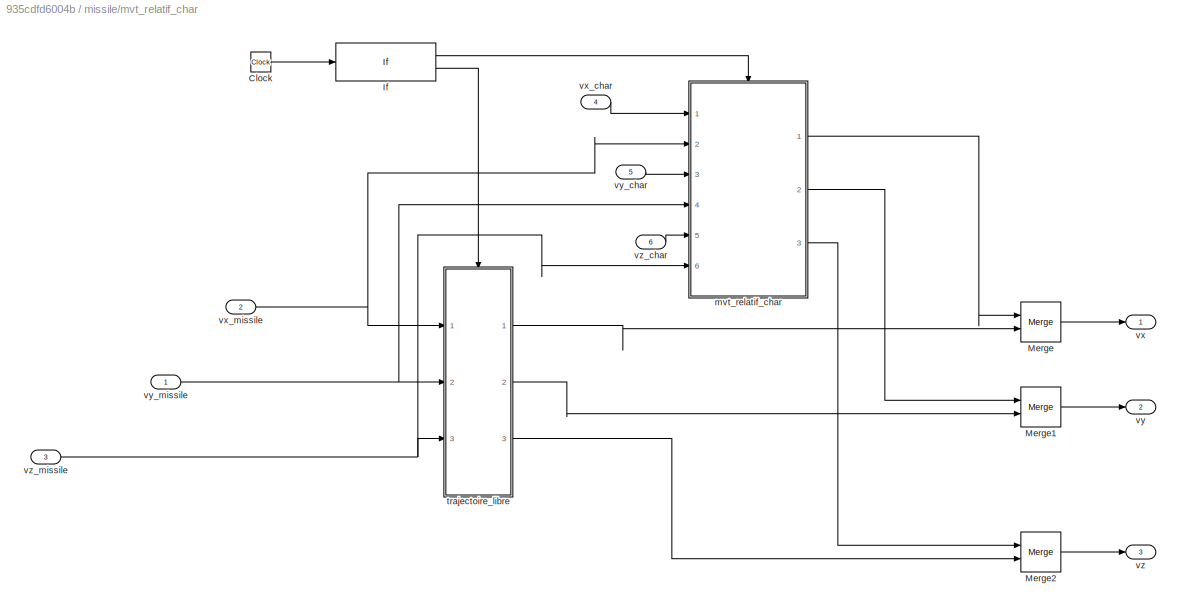
BLOCK [SubSystem] missile/mvt_relatif_char
  Ports = [6, 3]
  RequestExecContextInheritance = off
  TreatAsAtomicUnit = on
  Variant = off
BLOCK [Clock] missile/mvt_relatif_char/Clock
BLOCK [If] missile/mvt_relatif_char/If
  IfExpression = u1 ==0
  Ports = [1, 2]
BLOCK [Merge] missile/mvt_relatif_char/Merge
  Ports = [2, 1]
BLOCK [Merge] missile/mvt_relatif_char/Merge1
  Ports = [2, 1]
BLOCK [Merge] missile/mvt_relatif_char/Merge2
  Ports = [2, 1]
BLOCK [SubSystem] missile/mvt_relatif_char/mvt_relatif_char
  Ports = [6, 3, 0, 0, 0, 0, 0, 1]
  RequestExecContextInheritance = off
  TreatAsAtomicUnit = on
  Variant = off
BLOCK [ActionPort] missile/mvt_relatif_char/mvt_relatif_char/Action Port
  ActionType = then
BLOCK [Sum] missile/mvt_relatif_char/mvt_relatif_char/Add
  InputSameDT = off
  OutDataTypeStr = Inherit: Inherit via internal rule
  Ports = [2, 1]
  SaturateOnIntegerOverflow = off
BLOCK [Sum] missile/mvt_relatif_char/mvt_relatif_char/Add1
  InputSameDT = off
  OutDataTypeStr = Inherit: Inherit via internal rule
  Ports = [2, 1]
  SaturateOnIntegerOverflow = off
BLOCK [Sum] missile/mvt_relatif_char/mvt_relatif_char/Add2
  InputSameDT = off
  OutDataTypeStr = Inherit: Inherit via internal rule
  Ports = [2, 1]
  SaturateOnIntegerOverflow = off
BLOCK [Inport] missile/mvt_relatif_char/mvt_relatif_char/vx
  IconDisplay = Port number
  Port = 2
BLOCK [Inport] missile/mvt_relatif_char/mvt_relatif_char/vx_char
  IconDisplay = Port number
BLOCK [Outport] missile/mvt_relatif_char/mvt_relatif_char/vx_r
  IconDisplay = Port number
BLOCK [Inport] missile/mvt_relatif_char/mvt_relatif_char/vy
  IconDisplay = Port number
  Port = 4
BLOCK [Inport] missile/mvt_relatif_char/mvt_relatif_char/vy_char
  IconDisplay = Port number
  Port = 3
BLOCK [Outport] missile/mvt_relatif_char/mvt_relatif_char/vy_r
  IconDisplay = Port number
  Port = 2
BLOCK [Inport] missile/mvt_relatif_char/mvt_relatif_char/vz
  IconDisplay = Port number
  Port = 6
BLOCK [Inport] missile/mvt_relatif_char/mvt_relatif_char/vz_char
  IconDisplay = Port number
  Port = 5
BLOCK [Outport] missile/mvt_relatif_char/mvt_relatif_char/vz_r
  IconDisplay = Port number
  Port = 3
BLOCK [SubSystem] missile/mvt_relatif_char/trajectoire_libre
  Ports = [3, 3, 0, 0, 0, 0, 0, 1]
  RequestExecContextInheritance = off
  TreatAsAtomicUnit = on
  Variant = off
BLOCK [ActionPort] missile/mvt_relatif_char/trajectoire_libre/Action Port
  ActionType = else
BLOCK [Inport] missile/mvt_relatif_char/trajectoire_libre/vx
  IconDisplay = Port number
BLOCK [Outport] missile/mvt_relatif_char/trajectoire_libre/vx_r
  IconDisplay = Port number
BLOCK [Inport] missile/mvt_relatif_char/trajectoire_libre/vy
  IconDisplay = Port number
  Port = 2
BLOCK [Outport] missile/mvt_relatif_char/trajectoire_libre/vy_r
  IconDisplay = Port number
  Port = 2
BLOCK [Inport] missile/mvt_relatif_char/trajectoire_libre/vz
  IconDisplay = Port number
  Port = 3
BLOCK [Outport] missile/mvt_relatif_char/trajectoire_libre/vz_r
  IconDisplay = Port number
  Port = 3
BLOCK [Outport] missile/mvt_relatif_char/vx
  IconDisplay = Port number
BLOCK [Inport] missile/mvt_relatif_char/vx_char
  IconDisplay = Port number
  Port = 4
BLOCK [Inport] missile/mvt_relatif_char/vx_missile
  IconDisplay = Port number
  Port = 2
BLOCK [Outport] missile/mvt_relatif_char/vy
  IconDisplay = Port number
  Port = 2
BLOCK [Inport] missile/mvt_relatif_char/vy_char
  IconDisplay = Port number
  Port = 5
BLOCK [Inport] missile/mvt_relatif_char/vy_missile
  IconDisplay = Port number
BLOCK [Outport] missile/mvt_relatif_char/vz
  IconDisplay = Port number
  Port = 3
BLOCK [Inport] missile/mvt_relatif_char/vz_char
  IconDisplay = Port number
  Port = 6
BLOCK [Inport] missile/mvt_relatif_char/vz_missile
  IconDisplay = Port number
  Port = 3
BLOCK [SubSystem] missile/norme_vitesse 
  Ports = [4, 2]
  RequestExecContextInheritance = off
  TreatAsAtomicUnit = on
  Variant = off
BLOCK [Sum] missile/norme_vitesse /Add
  InputSameDT = off
  Inputs = +++
  OutDataTypeStr = Inherit: Inherit via internal rule
  Ports = [3, 1]
  SaturateOnIntegerOverflow = off
BLOCK [If] missile/norme_vitesse /If
  IfExpression = u1 == 0
  Ports = [1, 2]
BLOCK [SubSystem] missile/norme_vitesse /If Action Subsystem
  Ports = [2, 1, 0, 0, 0, 0, 0, 1]
  RequestExecContextInheritance = off
  TreatAsAtomicUnit = on
  Variant = off
BLOCK [ActionPort] missile/norme_vitesse /If Action Subsystem/Action Port
  ActionType = else
BLOCK [Product] missile/norme_vitesse /If Action Subsystem/Divide
  InputSameDT = off
  Inputs = */
  OutDataTypeStr = Inherit: Inherit via internal rule
  Ports = [2, 1]
  RndMeth = Floor
  SaturateOnIntegerOverflow = off
BLOCK [Trigonometry] missile/norme_vitesse /If Action Subsystem/Trigonometric Function
  Operator = atan
  Ports = [1, 1]
BLOCK [Outport] missile/norme_vitesse /If Action Subsystem/theta
  IconDisplay = Port number
BLOCK [Inport] missile/norme_vitesse /If Action Subsystem/vx
  IconDisplay = Port number
  Port = 2
BLOCK [Inport] missile/norme_vitesse /If Action Subsystem/vy
  IconDisplay = Port number
BLOCK [SubSystem] missile/norme_vitesse /If Action Subsystem1
  Ports = [1, 1, 0, 0, 0, 0, 0, 1]
  RequestExecContextInheritance = off
  TreatAsAtomicUnit = on
  Variant = off
BLOCK [Outport] missile/norme_vitesse /If Action Subsystem1/0
  IconDisplay = Port number
BLOCK [ActionPort] missile/norme_vitesse /If Action Subsystem1/Action Port
  ActionType = then
BLOCK [Inport] missile/norme_vitesse /If Action Subsystem1/theta_canon
  IconDisplay = Port number
BLOCK [Math] missile/norme_vitesse /Math Function
  Operator = magnitude^2
  Ports = [1, 1]
BLOCK [Math] missile/norme_vitesse /Math Function1
  Operator = magnitude^2
  Ports = [1, 1]
BLOCK [Math] missile/norme_vitesse /Math Function3
  Operator = magnitude^2
  Ports = [1, 1]
BLOCK [Merge] missile/norme_vitesse /Merge
  Ports = [2, 1]
BLOCK [Sqrt] missile/norme_vitesse /Sqrt
BLOCK [Inport] missile/norme_vitesse /theta_canon
  IconDisplay = Port number
  Port = 4
BLOCK [Outport] missile/norme_vitesse /theta_x_y
  IconDisplay = Port number
  Port = 2
BLOCK [Outport] missile/norme_vitesse /v_missile
  IconDisplay = Port number
BLOCK [Inport] missile/norme_vitesse /vx
  IconDisplay = Port number
  Port = 2
BLOCK [Inport] missile/norme_vitesse /vy
  IconDisplay = Port number
BLOCK [Inport] missile/norme_vitesse /vz
  IconDisplay = Port number
  Port = 3
BLOCK [Inport] missile/phi_canon
  IconDisplay = Port number
  Port = 8
BLOCK [SubSystem] missile/position_x
  Ports = [3, 1]
  RequestExecContextInheritance = off
  TreatAsAtomicUnit = on
  Variant = off
BLOCK [Sum] missile/position_x/Add
  InputSameDT = off
  Inputs = +++
  OutDataTypeStr = Inherit: Inherit via internal rule
  Ports = [3, 1]
  SaturateOnIntegerOverflow = off
BLOCK [Clock] missile/position_x/Clock
BLOCK [Clock] missile/position_x/Clock1
BLOCK [Gain] missile/position_x/Gain
  Gain = 1/2
  OutDataTypeStr = Inherit: Inherit via internal rule
  ParamDataTypeStr = Inherit: Inherit via internal rule
  SaturateOnIntegerOverflow = off
BLOCK [If] missile/position_x/If
  IfExpression = u1 >0
  Ports = [1, 2]
BLOCK [SubSystem] missile/position_x/If Action Subsystem
  Ports = [1, 1, 0, 0, 0, 0, 0, 1]
  RequestExecContextInheritance = off
  TreatAsAtomicUnit = on
  Variant = off
BLOCK [ActionPort] missile/position_x/If Action Subsystem/Action Port
  ActionType = then
BLOCK [Inport] missile/position_x/If Action Subsystem/x_0_char
  IconDisplay = Port number
BLOCK [Outport] missile/position_x/If Action Subsystem/x_0_char_r
  IconDisplay = Port number
BLOCK [SubSystem] missile/position_x/If Action Subsystem1
  Ports = [0, 1, 0, 0, 0, 0, 0, 1]
  RequestExecContextInheritance = off
  TreatAsAtomicUnit = on
  Variant = off
BLOCK [ActionPort] missile/position_x/If Action Subsystem1/Action Port
  ActionType = else
BLOCK [Constant] missile/position_x/If Action Subsystem1/Constant
  Value = pi
BLOCK [Outport] missile/position_x/If Action Subsystem1/x_r
  IconDisplay = Port number
BLOCK [Math] missile/position_x/Math Function
  Operator = magnitude^2
  Ports = [1, 1]
BLOCK [Merge] missile/position_x/Merge
  Ports = [2, 1]
BLOCK [Product] missile/position_x/Product
  InputSameDT = off
  OutDataTypeStr = Inherit: Inherit via internal rule
  Ports = [2, 1]
  RndMeth = Floor
  SaturateOnIntegerOverflow = off
BLOCK [Product] missile/position_x/Product1
  InputSameDT = off
  OutDataTypeStr = Inherit: Inherit via internal rule
  Ports = [2, 1]
  RndMeth = Floor
  SaturateOnIntegerOverflow = off
BLOCK [Inport] missile/position_x/ax
  IconDisplay = Port number
  Port = 2
BLOCK [Inport] missile/position_x/vx
  IconDisplay = Port number
BLOCK [Outport] missile/position_x/x
  IconDisplay = Port number
BLOCK [Inport] missile/position_x/x0_char
  IconDisplay = Port number
  Port = 3
BLOCK [SubSystem] missile/position_y
  Ports = [3, 1]
  RequestExecContextInheritance = off
  TreatAsAtomicUnit = on
  Variant = off
BLOCK [Sum] missile/position_y/Add
  InputSameDT = off
  Inputs = +++
  OutDataTypeStr = Inherit: Inherit via internal rule
  Ports = [3, 1]
  SaturateOnIntegerOverflow = off
BLOCK [Clock] missile/position_y/Clock
BLOCK [Clock] missile/position_y/Clock1
BLOCK [Gain] missile/position_y/Gain
  Gain = 1/2
  OutDataTypeStr = Inherit: Inherit via internal rule
  ParamDataTypeStr = Inherit: Inherit via internal rule
  SaturateOnIntegerOverflow = off
BLOCK [If] missile/position_y/If
  IfExpression = u1> 0
  Ports = [1, 2]
BLOCK [SubSystem] missile/position_y/If Action Subsystem
  Ports = [1, 1, 0, 0, 0, 0, 0, 1]
  RequestExecContextInheritance = off
  TreatAsAtomicUnit = on
  Variant = off
BLOCK [ActionPort] missile/position_y/If Action Subsystem/Action Port
  ActionType = then
BLOCK [Inport] missile/position_y/If Action Subsystem/y_0_char
  IconDisplay = Port number
BLOCK [Outport] missile/position_y/If Action Subsystem/y_0_char_r
  IconDisplay = Port number
BLOCK [SubSystem] missile/position_y/If Action Subsystem1
  Ports = [0, 1, 0, 0, 0, 0, 0, 1]
  RequestExecContextInheritance = off
  TreatAsAtomicUnit = on
  Variant = off
BLOCK [ActionPort] missile/position_y/If Action Subsystem1/Action Port
  ActionType = else
BLOCK [Constant] missile/position_y/If Action Subsystem1/Constant
  Value = pi
BLOCK [Outport] missile/position_y/If Action Subsystem1/y_r
  IconDisplay = Port number
BLOCK [Math] missile/position_y/Math Function
  Operator = magnitude^2
  Ports = [1, 1]
BLOCK [Merge] missile/position_y/Merge
  Ports = [2, 1]
BLOCK [Product] missile/position_y/Product
  InputSameDT = off
  OutDataTypeStr = Inherit: Inherit via internal rule
  Ports = [2, 1]
  RndMeth = Floor
  SaturateOnIntegerOverflow = off
BLOCK [Product] missile/position_y/Product1
  InputSameDT = off
  OutDataTypeStr = Inherit: Inherit via internal rule
  Ports = [2, 1]
  RndMeth = Floor
  SaturateOnIntegerOverflow = off
BLOCK [Inport] missile/position_y/ay
  IconDisplay = Port number
  Port = 2
BLOCK [Inport] missile/position_y/vy
  IconDisplay = Port number
BLOCK [Outport] missile/position_y/y
  IconDisplay = Port number
BLOCK [Inport] missile/position_y/y0
  IconDisplay = Port number
  Port = 3
BLOCK [SubSystem] missile/position_z
  Ports = [3, 1]
  RequestExecContextInheritance = off
  TreatAsAtomicUnit = on
  Variant = off
BLOCK [Sum] missile/position_z/Add
  InputSameDT = off
  Inputs = +++
  OutDataTypeStr = Inherit: Inherit via internal rule
  Ports = [3, 1]
  SaturateOnIntegerOverflow = off
BLOCK [Clock] missile/position_z/Clock
BLOCK [Clock] missile/position_z/Clock1
BLOCK [Gain] missile/position_z/Gain
  Gain = 1/2
  OutDataTypeStr = Inherit: Inherit via internal rule
  ParamDataTypeStr = Inherit: Inherit via internal rule
  SaturateOnIntegerOverflow = off
BLOCK [If] missile/position_z/If
  Ports = [1, 2]
BLOCK [SubSystem] missile/position_z/If Action Subsystem
  Ports = [1, 1, 0, 0, 0, 0, 0, 1]
  RequestExecContextInheritance = off
  TreatAsAtomicUnit = on
  Variant = off
BLOCK [ActionPort] missile/position_z/If Action Subsystem/Action Port
  ActionType = then
BLOCK [Inport] missile/position_z/If Action Subsystem/z_0_char
  IconDisplay = Port number
BLOCK [Outport] missile/position_z/If Action Subsystem/z_0_char_r
  IconDisplay = Port number
BLOCK [SubSystem] missile/position_z/If Action Subsystem1
  Ports = [0, 1, 0, 0, 0, 0, 0, 1]
  RequestExecContextInheritance = off
  TreatAsAtomicUnit = on
  Variant = off
BLOCK [ActionPort] missile/position_z/If Action Subsystem1/Action Port
  ActionType = else
BLOCK [Constant] missile/position_z/If Action Subsystem1/Constant
  Value = pi
BLOCK [Outport] missile/position_z/If Action Subsystem1/z_r
  IconDisplay = Port number
BLOCK [Math] missile/position_z/Math Function
  Operator = magnitude^2
  Ports = [1, 1]
BLOCK [Merge] missile/position_z/Merge
  Ports = [2, 1]
BLOCK [Product] missile/position_z/Product
  InputSameDT = off
  OutDataTypeStr = Inherit: Inherit via internal rule
  Ports = [2, 1]
  RndMeth = Floor
  SaturateOnIntegerOverflow = off
BLOCK [Product] missile/position_z/Product1
  InputSameDT = off
  OutDataTypeStr = Inherit: Inherit via internal rule
  Ports = [2, 1]
  RndMeth = Floor
  SaturateOnIntegerOverflow = off
BLOCK [Inport] missile/position_z/az
  IconDisplay = Port number
  Port = 2
BLOCK [Inport] missile/position_z/vz
  IconDisplay = Port number
BLOCK [Outport] missile/position_z/z
  IconDisplay = Port number
BLOCK [Inport] missile/position_z/z0
  IconDisplay = Port number
  Port = 3
BLOCK [Inport] missile/theta_canon
  IconDisplay = Port number
  Port = 7
BLOCK [SubSystem] missile/vitesse_missile_x
  Ports = [1, 1]
  RequestExecContextInheritance = off
  TreatAsAtomicUnit = on
  Variant = off
BLOCK [Inport] missile/vitesse_missile_x/ax
  IconDisplay = Port number
BLOCK [Integrator] missile/vitesse_missile_x/v
  Ports = [1, 1]
BLOCK [Outport] missile/vitesse_missile_x/vx_missile
  IconDisplay = Port number
BLOCK [SubSystem] missile/vitesse_missile_y
  Ports = [1, 1]
  RequestExecContextInheritance = off
  TreatAsAtomicUnit = on
  Variant = off
BLOCK [Inport] missile/vitesse_missile_y/ay
  IconDisplay = Port number
BLOCK [Integrator] missile/vitesse_missile_y/v
  Ports = [1, 1]
BLOCK [Outport] missile/vitesse_missile_y/vy_missile
  IconDisplay = Port number
BLOCK [SubSystem] missile/vitesse_missile_z
  Ports = [1, 1]
  RequestExecContextInheritance = off
  TreatAsAtomicUnit = on
  Variant = off
BLOCK [Inport] missile/vitesse_missile_z/az
  IconDisplay = Port number
BLOCK [Integrator] missile/vitesse_missile_z/v
  Ports = [1, 1]
BLOCK [Outport] missile/vitesse_missile_z/vz
  IconDisplay = Port number
BLOCK [Scope] missile/vx
  NumInputPorts = 1
  Ports = [1]
  ScopeSpecificationString = Simulink.scopes.TimeScopeBlockCfg('CurrentConfiguration', extmgr.ConfigurationSet(extmgr.Configuration('Core','General UI',true),extmgr.Configuration('Core','Source UI',true),extmgr.Configuration('Sources','WiredSimulink',true,'DataLoggingVariableName','ScopeData3'),extmgr.Configuration('Visuals','Time Domain',true,'SerializedDisplays',{struct('MinYLimReal','-15.80343','MaxYLimReal','1.75594','YLa...<+1461ch>
BLOCK [Inport] missile/vx_char
  IconDisplay = Port number
  Port = 4
BLOCK [Scope] missile/vy
  NumInputPorts = 1
  Ports = [1]
  ScopeSpecificationString = Simulink.scopes.TimeScopeBlockCfg('CurrentConfiguration', extmgr.ConfigurationSet(extmgr.Configuration('Core','General UI',true),extmgr.Configuration('Core','Source UI',true),extmgr.Configuration('Sources','WiredSimulink',true,'DataLoggingVariableName','ScopeData2'),extmgr.Configuration('Visuals','Time Domain',true,'SerializedDisplays',{struct('MinYLimReal','-65.42357','MaxYLimReal','18.62338','YL...<+1415ch>
BLOCK [Inport] missile/vy_char
  IconDisplay = Port number
  Port = 5
BLOCK [Scope] missile/vz
  NumInputPorts = 1
  Ports = [1]
  ScopeSpecificationString = Simulink.scopes.TimeScopeBlockCfg('CurrentConfiguration', extmgr.ConfigurationSet(extmgr.Configuration('Core','General UI',true),extmgr.Configuration('Core','Source UI',true),extmgr.Configuration('Sources','WiredSimulink',true,'DataLoggingVariableName','ScopeData1'),extmgr.Configuration('Visuals','Time Domain',true,'SerializedDisplays',{struct('MinYLimReal','-8.69288','MaxYLimReal','3.1881','YLabe...<+1407ch>
BLOCK [Inport] missile/vz_char
  IconDisplay = Port number
  Port = 6
BLOCK [Inport] missile/w_phi
  IconDisplay = Port number
  Port = 10
BLOCK [Inport] missile/w_theta
  IconDisplay = Port number
  Port = 9
BLOCK [Outport] missile/x
  IconDisplay = Port number
BLOCK [Inport] missile/x_char
  IconDisplay = Port number
BLOCK [Outport] missile/y
  IconDisplay = Port number
  Port = 2
BLOCK [Inport] missile/y_char
  IconDisplay = Port number
  Port = 2
BLOCK [Outport] missile/z
  IconDisplay = Port number
  Port = 3
BLOCK [Inport] missile/z_char
  IconDisplay = Port number
  Port = 3
BLOCK [Constant] phi_ini_canon
  Value = phi_ini_canon
BLOCK [Constant] phi_ini_canon1
  Value = phi_ini_canon
BLOCK [Constant] phi_ini_canon2
  Value = w_ini_phi
BLOCK [Constant] pos_ini_char_x
  Value = pos_ini_char_x
BLOCK [Constant] pos_ini_char_x1
  Value = pos_ini_char_x
BLOCK [Constant] pos_ini_char_y
  Value = pos_ini_char_y
BLOCK [Constant] pos_ini_char_y1
  Value = pos_ini_char_y
BLOCK [Constant] pos_ini_char_y2
  Value = pos_ini_char_y
BLOCK [Constant] pos_ini_char_z
  Value = pos_ini_char_z
BLOCK [Constant] pos_ini_cible_x
  Value = pos_ini_cible_x
BLOCK [Constant] pos_ini_cible_y
  Value = pos_ini_cible_y
BLOCK [Constant] pos_ini_cible_z
  Value = pos_ini_cible_z
BLOCK [Scope] pos_phi
  NumInputPorts = 1
  Ports = [1]
  ScopeSpecificationString = Simulink.scopes.TimeScopeBlockCfg('CurrentConfiguration', extmgr.ConfigurationSet(extmgr.Configuration('Core','General UI',true),extmgr.Configuration('Core','Source UI',true),extmgr.Configuration('Sources','WiredSimulink',true,'DataLoggingVariableName','ScopeData8'),extmgr.Configuration('Visuals','Time Domain',true,'SerializedDisplays',{struct('MinYLimReal','-0.27226','MaxYLimReal','2.45036','YLab...<+1366ch>
BLOCK [Scope] pos_theta
  NumInputPorts = 1
  Ports = [1]
  ScopeSpecificationString = Simulink.scopes.TimeScopeBlockCfg('CurrentConfiguration', extmgr.ConfigurationSet(extmgr.Configuration('Core','General UI',true),extmgr.Configuration('Core','Source UI',true),extmgr.Configuration('Sources','WiredSimulink',true,'DataLoggingVariableName','ScopeData7'),extmgr.Configuration('Visuals','Time Domain',true,'SerializedDisplays',{struct('MinYLimReal','0.875','MaxYLimReal','2.125','YLabelRea...<+1348ch>
BLOCK [Scope] pos_x missile
  NumInputPorts = 1
  Ports = [1]
  ScopeSpecificationString = Simulink.scopes.TimeScopeBlockCfg('CurrentConfiguration', extmgr.ConfigurationSet(extmgr.Configuration('Core','General UI',true),extmgr.Configuration('Core','Source UI',true),extmgr.Configuration('Sources','WiredSimulink',true,'DataLoggingVariableName','ScopeData1'),extmgr.Configuration('Visuals','Time Domain',true,'SerializedDisplays',{struct('MinYLimReal','-4.62951','MaxYLimReal','11.04807','YLa...<+1372ch>
BLOCK [Scope] pos_x_char
  NumInputPorts = 1
  Ports = [1]
  ScopeSpecificationString = Simulink.scopes.TimeScopeBlockCfg('CurrentConfiguration', extmgr.ConfigurationSet(extmgr.Configuration('Core','General UI',true),extmgr.Configuration('Core','Source UI',true),extmgr.Configuration('Sources','WiredSimulink',true,'DataLoggingVariableName','ScopeData1'),extmgr.Configuration('Visuals','Time Domain',true,'SerializedDisplays',{struct('MinYLimReal','-7.3125','MaxYLimReal','75.8125','YLabe...<+1396ch>
BLOCK [Scope] pos_x_cible
  NumInputPorts = 1
  Ports = [1]
  ScopeSpecificationString = Simulink.scopes.TimeScopeBlockCfg('CurrentConfiguration', extmgr.ConfigurationSet(extmgr.Configuration('Core','General UI',true),extmgr.Configuration('Core','Source UI',true),extmgr.Configuration('Sources','WiredSimulink',true,'DataLoggingVariableName','ScopeData4'),extmgr.Configuration('Visuals','Time Domain',true,'SerializedDisplays',{struct('MinYLimReal','18.5','MaxYLimReal','103.5','YLabelReal...<+1344ch>
BLOCK [Scope] pos_y_char
  NumInputPorts = 1
  Ports = [1]
  ScopeSpecificationString = Simulink.scopes.TimeScopeBlockCfg('CurrentConfiguration', extmgr.ConfigurationSet(extmgr.Configuration('Core','General UI',true),extmgr.Configuration('Core','Source UI',true),extmgr.Configuration('Sources','WiredSimulink',true,'DataLoggingVariableName','ScopeData2'),extmgr.Configuration('Visuals','Time Domain',true,'SerializedDisplays',{struct('MinYLimReal','-0.5','MaxYLimReal','274.5','YLabelReal...<+1349ch>
BLOCK [Scope] pos_y_cible
  NumInputPorts = 1
  Ports = [1]
  ScopeSpecificationString = Simulink.scopes.TimeScopeBlockCfg('CurrentConfiguration', extmgr.ConfigurationSet(extmgr.Configuration('Core','General UI',true),extmgr.Configuration('Core','Source UI',true),extmgr.Configuration('Sources','WiredSimulink',true,'DataLoggingVariableName','ScopeData5'),extmgr.Configuration('Visuals','Time Domain',true,'SerializedDisplays',{struct('MinYLimReal','2.0625','MaxYLimReal','81.4375','YLabel...<+1360ch>
BLOCK [Scope] pos_y_missile
  NumInputPorts = 1
  Ports = [1]
  ScopeSpecificationString = Simulink.scopes.TimeScopeBlockCfg('CurrentConfiguration', extmgr.ConfigurationSet(extmgr.Configuration('Core','General UI',true),extmgr.Configuration('Core','Source UI',true),extmgr.Configuration('Sources','WiredSimulink',true,'DataLoggingVariableName','ScopeData2'),extmgr.Configuration('Visuals','Time Domain',true,'SerializedDisplays',{struct('MinYLimReal','-56.46127','MaxYLimReal','18.6779','YLa...<+1403ch>
BLOCK [Scope] pos_z_char
  NumInputPorts = 1
  Ports = [1]
  ScopeSpecificationString = Simulink.scopes.TimeScopeBlockCfg('CurrentConfiguration', extmgr.ConfigurationSet(extmgr.Configuration('Core','General UI',true),extmgr.Configuration('Core','Source UI',true),extmgr.Configuration('Sources','WiredSimulink',true,'DataLoggingVariableName','ScopeData3'),extmgr.Configuration('Visuals','Time Domain',true,'SerializedDisplays',{struct('MinYLimReal','-1.00000','MaxYLimReal','1.00000','YLab...<+1396ch>
BLOCK [Scope] pos_z_char1
  NumInputPorts = 1
  Ports = [1]
  ScopeSpecificationString = Simulink.scopes.TimeScopeBlockCfg('CurrentConfiguration', extmgr.ConfigurationSet(extmgr.Configuration('Core','General UI',true),extmgr.Configuration('Core','Source UI',true),extmgr.Configuration('Sources','WiredSimulink',true,'DataLoggingVariableName','ScopeData1'),extmgr.Configuration('Visuals','Time Domain',true,'SerializedDisplays',{struct('MinYLimReal','-1.00000','MaxYLimReal','1.00000','YLab...<+1396ch>
BLOCK [Scope] pos_z_cible
  NumInputPorts = 1
  Ports = [1]
  ScopeSpecificationString = Simulink.scopes.TimeScopeBlockCfg('CurrentConfiguration', extmgr.ConfigurationSet(extmgr.Configuration('Core','General UI',true),extmgr.Configuration('Core','Source UI',true),extmgr.Configuration('Sources','WiredSimulink',true,'DataLoggingVariableName','ScopeData6'),extmgr.Configuration('Visuals','Time Domain',true,'SerializedDisplays',{struct('MinYLimReal','32.625','MaxYLimReal','106.375','YLabel...<+1360ch>
BLOCK [Scope] pos_z_missile
  NumInputPorts = 1
  Ports = [1]
  ScopeSpecificationString = Simulink.scopes.TimeScopeBlockCfg('CurrentConfiguration', extmgr.ConfigurationSet(extmgr.Configuration('Core','General UI',true),extmgr.Configuration('Core','Source UI',true),extmgr.Configuration('Sources','WiredSimulink',true,'DataLoggingVariableName','ScopeData3'),extmgr.Configuration('Visuals','Time Domain',true,'SerializedDisplays',{struct('MinYLimReal','-6.33518','MaxYLimReal','88.43253','YLa...<+1471ch>
BLOCK [Constant] theta_ini_canon
  Value = theta_ini_canon
BLOCK [Constant] theta_ini_canon1
  Value = theta_ini_canon
ANNOTATION cible: r = r0+v*t+at^2
LINE Constant1:1 -> missile:5
LINE Constant2:1 -> missile:6
LINE Constant3:1 -> missile:9
LINE Constant:1 -> missile:4
LINE a_char_x:1 -> char:4
LINE a_char_y1:1 -> char:5
LINE a_char_z1:1 -> char:6
LINE a_cible_x:1 -> cible:4
LINE a_cible_y:1 -> cible:5
LINE a_cible_z:1 -> cible:6
LINE alpha_phi:1 -> canon:4
LINE alpha_theta:1 -> canon:3
LINE canon/alpha_phi:1 -> canon/angle_theta1:2
LINE canon/alpha_theta:1 -> canon/angle_theta:2
LINE canon/angle_theta/Add1:1 -> canon/angle_theta/theta:1
LINE canon/angle_theta/Add:1 -> canon/angle_theta/Add1:1
NET canon/angle_theta/Clock:1 -> canon/angle_theta/Math Function:1, canon/angle_theta/Product:2
LINE canon/angle_theta/Gain:1 -> canon/angle_theta/Add1:2
LINE canon/angle_theta/Math Function:1 -> canon/angle_theta/Product1:1
LINE canon/angle_theta/Product1:1 -> canon/angle_theta/Gain:1
LINE canon/angle_theta/Product:1 -> canon/angle_theta/Add:2
NET canon/angle_theta/alpha_theta:1 -> canon/angle_theta/Product1:2, canon/angle_theta/v:1
LINE canon/angle_theta/theta_ini:1 -> canon/angle_theta/Add:1
NET canon/angle_theta/v:1 -> canon/angle_theta/Product:1, canon/angle_theta/w_theta:1
LINE canon/angle_theta1/Add1:1 -> canon/angle_theta1/phi:1
LINE canon/angle_theta1/Add:1 -> canon/angle_theta1/Add1:1
NET canon/angle_theta1/Clock:1 -> canon/angle_theta1/Math Function:1, canon/angle_theta1/Product:2
LINE canon/angle_theta1/Gain:1 -> canon/angle_theta1/Add1:2
LINE canon/angle_theta1/Math Function:1 -> canon/angle_theta1/Product1:1
LINE canon/angle_theta1/Product1:1 -> canon/angle_theta1/Gain:1
LINE canon/angle_theta1/Product:1 -> canon/angle_theta1/Add:2
NET canon/angle_theta1/alpha_phi:1 -> canon/angle_theta1/Product1:2, canon/angle_theta1/v:1
LINE canon/angle_theta1/phi_ini:1 -> canon/angle_theta1/Add:1
NET canon/angle_theta1/v:1 -> canon/angle_theta1/Product:1, canon/angle_theta1/w_phi:1
LINE canon/angle_theta1:1 -> canon/phi:1
LINE canon/angle_theta1:2 -> canon/w_phi:1
LINE canon/angle_theta:1 -> canon/theta:1
LINE canon/angle_theta:2 -> canon/w_theta:1
LINE canon/phi_ini:1 -> canon/angle_theta1:1
LINE canon/theta_ini:1 -> canon/angle_theta:1
NET canon:1 -> To Workspace9:1, pos_theta:1
NET canon:2 -> To Workspace10:1, pos_phi:1
LINE canon:3 -> To Workspace15:1
LINE canon:4 -> To Workspace14:1
LINE char/ax:1 -> char/position_x:2
LINE char/ay:1 -> char/position_y:2
LINE char/az:1 -> char/position_z:2
LINE char/position_x/Add1:1 -> char/position_x/x:1
LINE char/position_x/Add:1 -> char/position_x/Add1:1
NET char/position_x/Clock:1 -> char/position_x/Math Function:1, char/position_x/Product:2
LINE char/position_x/Gain:1 -> char/position_x/Add1:2
LINE char/position_x/Math Function:1 -> char/position_x/Product1:1
LINE char/position_x/Product1:1 -> char/position_x/Gain:1
LINE char/position_x/Product:1 -> char/position_x/Add:2
NET char/position_x/ay:1 -> char/position_x/Product1:2, char/position_x/v:1
NET char/position_x/v:1 -> char/position_x/Product:1, char/position_x/vx:1
LINE char/position_x/x0:1 -> char/position_x/Add:1
LINE char/position_x:1 -> char/x:1
LINE char/position_x:2 -> char/vx:1
LINE char/position_y/Add1:1 -> char/position_y/y:1
LINE char/position_y/Add:1 -> char/position_y/Add1:1
NET char/position_y/Clock:1 -> char/position_y/Math Function:1, char/position_y/Product:2
LINE char/position_y/Gain:1 -> char/position_y/Add1:2
LINE char/position_y/Math Function:1 -> char/position_y/Product1:1
LINE char/position_y/Product1:1 -> char/position_y/Gain:1
LINE char/position_y/Product:1 -> char/position_y/Add:2
NET char/position_y/ay:1 -> char/position_y/Product1:2, char/position_y/v:1
NET char/position_y/v:1 -> char/position_y/Product:1, char/position_y/vy:1
LINE char/position_y/y0:1 -> char/position_y/Add:1
LINE char/position_y:1 -> char/y:1
LINE char/position_y:2 -> char/vy:1
LINE char/position_z/Add1:1 -> char/position_z/z:1
LINE char/position_z/Add:1 -> char/position_z/Add1:1
NET char/position_z/Clock:1 -> char/position_z/Math Function:1, char/position_z/Product:2
LINE char/position_z/Gain:1 -> char/position_z/Add1:2
LINE char/position_z/Math Function:1 -> char/position_z/Product1:1
LINE char/position_z/Product1:1 -> char/position_z/Gain:1
LINE char/position_z/Product:1 -> char/position_z/Add:2
NET char/position_z/az:1 -> char/position_z/Product1:2, char/position_z/v:1
NET char/position_z/v:1 -> char/position_z/Product:1, char/position_z/vz:1
LINE char/position_z/z0:1 -> char/position_z/Add:1
LINE char/position_z:1 -> char/z:1
LINE char/position_z:2 -> char/vz:1
LINE char/x0:1 -> char/position_x:1
LINE char/y0:1 -> char/position_y:1
LINE char/z0:1 -> char/position_z:1
NET char:1 -> To Workspace6:1, pos_x_char:1
NET char:2 -> To Workspace7:1, pos_y_char:1
NET char:3 -> To Workspace8:1, pos_z_char:1
LINE char:4 -> To Workspace11:1
LINE char:5 -> To Workspace12:1
NET char:6 -> To Workspace13:1, pos_z_char1:1
LINE cible/ax:1 -> cible/position_x:2
LINE cible/ay:1 -> cible/position_y:2
LINE cible/az:1 -> cible/position_z:2
LINE cible/position_x/Add1:1 -> cible/position_x/x:1
LINE cible/position_x/Add:1 -> cible/position_x/Add1:1
NET cible/position_x/Clock:1 -> cible/position_x/Math Function:1, cible/position_x/Product:2
LINE cible/position_x/Gain:1 -> cible/position_x/Add1:2
LINE cible/position_x/Math Function:1 -> cible/position_x/Product1:1
LINE cible/position_x/Product1:1 -> cible/position_x/Gain:1
LINE cible/position_x/Product:1 -> cible/position_x/Add:2
NET cible/position_x/ay:1 -> cible/position_x/Product1:2, cible/position_x/v:1
LINE cible/position_x/v:1 -> cible/position_x/Product:1
LINE cible/position_x/x0:1 -> cible/position_x/Add:1
LINE cible/position_x:1 -> cible/x:1
LINE cible/position_y/Add1:1 -> cible/position_y/y:1
LINE cible/position_y/Add:1 -> cible/position_y/Add1:1
NET cible/position_y/Clock:1 -> cible/position_y/Math Function:1, cible/position_y/Product:2
LINE cible/position_y/Gain:1 -> cible/position_y/Add1:2
LINE cible/position_y/Math Function:1 -> cible/position_y/Product1:1
LINE cible/position_y/Product1:1 -> cible/position_y/Gain:1
LINE cible/position_y/Product:1 -> cible/position_y/Add:2
NET cible/position_y/ay:1 -> cible/position_y/Product1:2, cible/position_y/v:1
LINE cible/position_y/v:1 -> cible/position_y/Product:1
LINE cible/position_y/y0:1 -> cible/position_y/Add:1
LINE cible/position_y:1 -> cible/y:1
LINE cible/position_z/Add1:1 -> cible/position_z/z:1
LINE cible/position_z/Add:1 -> cible/position_z/Add1:1
NET cible/position_z/Clock:1 -> cible/position_z/Math Function:1, cible/position_z/Product:2
LINE cible/position_z/Gain:1 -> cible/position_z/Add1:2
LINE cible/position_z/Math Function:1 -> cible/position_z/Product1:1
LINE cible/position_z/Product1:1 -> cible/position_z/Gain:1
LINE cible/position_z/Product:1 -> cible/position_z/Add:2
NET cible/position_z/az:1 -> cible/position_z/Product1:2, cible/position_z/v:1
LINE cible/position_z/v:1 -> cible/position_z/Product:1
LINE cible/position_z/z0:1 -> cible/position_z/Add:1
LINE cible/position_z:1 -> cible/z:1
LINE cible/x0:1 -> cible/position_x:1
LINE cible/y0:1 -> cible/position_y:1
LINE cible/z0:1 -> cible/position_z:1
NET cible:1 -> To Workspace3:1, pos_x_cible:1
NET cible:2 -> To Workspace4:1, pos_y_cible:1
NET cible:3 -> To Workspace5:1, pos_z_cible:1
LINE missile/Portance/Constant:1 -> missile/Portance/Product:2
LINE missile/Portance/Gain:1 -> missile/Portance/Product:1
LINE missile/Portance/Math Function:1 -> missile/Portance/Gain:1
LINE missile/Portance/Product:1 -> missile/Portance/Fl:1
LINE missile/Portance/v_missile:1 -> missile/Portance/Math Function:1
LINE missile/Portance:1 -> missile/acceleration_z:2
NET missile/Reynold/Gain:1 -> missile/Reynold/Re:1, missile/Reynold/To Workspace:1
LINE missile/Reynold/V:1 -> missile/Reynold/Gain:1
LINE missile/Reynold:1 -> missile/Scope5:1
LINE missile/Trainer/Constant:1 -> missile/Trainer/Product:2
LINE missile/Trainer/Gain:1 -> missile/Trainer/Product:1
LINE missile/Trainer/Math Function:1 -> missile/Trainer/Gain:1
LINE missile/Trainer/Product:1 -> missile/Trainer/Fd:1
LINE missile/Trainer/v_missile:1 -> missile/Trainer/Math Function:1
LINE missile/Trainer:1 -> missile/acceleration_paralle_mvt:1
LINE missile/Unit Delay1:1 -> missile/acceleration_x:3
LINE missile/Unit Delay2:1 -> missile/Trainer:1
LINE missile/Unit Delay3:1 -> missile/acceleration_y:1
LINE missile/Unit Delay4:1 -> missile/acceleration_y:2
LINE missile/Unit Delay:1 -> missile/acceleration_x:1
LINE missile/acceleration_paralle_mvt/Add:1 -> missile/acceleration_paralle_mvt/Gain:1
LINE missile/acceleration_paralle_mvt/Fcxy:1 -> missile/acceleration_paralle_mvt/Add:2
LINE missile/acceleration_paralle_mvt/Fd:1 -> missile/acceleration_paralle_mvt/Add:1
LINE missile/acceleration_paralle_mvt/Gain:1 -> missile/acceleration_paralle_mvt/al:1
NET missile/acceleration_paralle_mvt:1 -> missile/Scope:1, missile/Unit Delay3:1, missile/Unit Delay:1
LINE missile/acceleration_x/Clock:1 -> missile/acceleration_x/If:1
LINE missile/acceleration_x/If Action Subsystem/Product:1 -> missile/acceleration_x/If Action Subsystem/ay:1
LINE missile/acceleration_x/If Action Subsystem/Trigonometric Function:1 -> missile/acceleration_x/If Action Subsystem/Product:2
LINE missile/acceleration_x/If Action Subsystem/al:1 -> missile/acceleration_x/If Action Subsystem/Product:1
LINE missile/acceleration_x/If Action Subsystem/theta_x_y_missile:1 -> missile/acceleration_x/If Action Subsystem/Trigonometric Function:1
LINE missile/acceleration_x/If Action Subsystem1/Product:1 -> missile/acceleration_x/If Action Subsystem1/ay:1
LINE missile/acceleration_x/If Action Subsystem1/Trigonometric Function:1 -> missile/acceleration_x/If Action Subsystem1/Product:2
LINE missile/acceleration_x/If Action Subsystem1/al:1 -> missile/acceleration_x/If Action Subsystem1/Product:1
LINE missile/acceleration_x/If Action Subsystem1/theta_canon:1 -> missile/acceleration_x/If Action Subsystem1/Trigonometric Function:1
LINE missile/acceleration_x/If Action Subsystem1:1 -> missile/acceleration_x/Merge:1
LINE missile/acceleration_x/If Action Subsystem2/In1:1 -> missile/acceleration_x/If Action Subsystem2/Out1:1
LINE missile/acceleration_x/If Action Subsystem2:1 -> missile/acceleration_x/Merge1:1
LINE missile/acceleration_x/If Action Subsystem3/Gain:1 -> missile/acceleration_x/If Action Subsystem3/Out1:1
LINE missile/acceleration_x/If Action Subsystem3/In1:1 -> missile/acceleration_x/If Action Subsystem3/Gain:1
LINE missile/acceleration_x/If Action Subsystem3:1 -> missile/acceleration_x/Merge1:2
LINE missile/acceleration_x/If Action Subsystem:1 -> missile/acceleration_x/Merge:2
LINE missile/acceleration_x/If:1 -> missile/acceleration_x/If Action Subsystem1:ifaction
LINE missile/acceleration_x/If:2 -> missile/acceleration_x/If Action Subsystem:ifaction
LINE missile/acceleration_x/Merge1:1 -> missile/acceleration_x/ax:1
NET missile/acceleration_x/Merge:1 -> missile/acceleration_x/If Action Subsystem2:1, missile/acceleration_x/If Action Subsystem3:1
NET missile/acceleration_x/al:1 -> missile/acceleration_x/If Action Subsystem1:1, missile/acceleration_x/If Action Subsystem:1
LINE missile/acceleration_x/sense drag:1 -> missile/acceleration_x/If Action Subsystem2:ifaction
LINE missile/acceleration_x/sense drag:2 -> missile/acceleration_x/If Action Subsystem3:ifaction
LINE missile/acceleration_x/theta_x_y:1 -> missile/acceleration_x/If Action Subsystem:2
LINE missile/acceleration_x/theta_x_y_canon:1 -> missile/acceleration_x/If Action Subsystem1:2
LINE missile/acceleration_x/vx:1 -> missile/acceleration_x/sense drag:1
NET missile/acceleration_x:1 -> missile/Scope2:1, missile/position_x:2, missile/vitesse_missile_x:1
LINE missile/acceleration_y/Clock:1 -> missile/acceleration_y/If:1
LINE missile/acceleration_y/If Action Subsystem/Product:1 -> missile/acceleration_y/If Action Subsystem/ay:1
LINE missile/acceleration_y/If Action Subsystem/Trigonometric Function:1 -> missile/acceleration_y/If Action Subsystem/Product:2
LINE missile/acceleration_y/If Action Subsystem/al:1 -> missile/acceleration_y/If Action Subsystem/Product:1
LINE missile/acceleration_y/If Action Subsystem/theta_x_y_missile:1 -> missile/acceleration_y/If Action Subsystem/Trigonometric Function:1
LINE missile/acceleration_y/If Action Subsystem1/Product:1 -> missile/acceleration_y/If Action Subsystem1/ay:1
LINE missile/acceleration_y/If Action Subsystem1/Trigonometric Function:1 -> missile/acceleration_y/If Action Subsystem1/Product:2
LINE missile/acceleration_y/If Action Subsystem1/al:1 -> missile/acceleration_y/If Action Subsystem1/Product:1
LINE missile/acceleration_y/If Action Subsystem1/theta_canon:1 -> missile/acceleration_y/If Action Subsystem1/Trigonometric Function:1
LINE missile/acceleration_y/If Action Subsystem1:1 -> missile/acceleration_y/Merge:1
LINE missile/acceleration_y/If Action Subsystem:1 -> missile/acceleration_y/Merge:2
LINE missile/acceleration_y/If:1 -> missile/acceleration_y/If Action Subsystem1:ifaction
LINE missile/acceleration_y/If:2 -> missile/acceleration_y/If Action Subsystem:ifaction
LINE missile/acceleration_y/Merge1:1 -> missile/acceleration_y/ay:1
NET missile/acceleration_y/Merge:1 -> missile/acceleration_y/négatif:1, missile/acceleration_y/positf:1
NET missile/acceleration_y/al:1 -> missile/acceleration_y/If Action Subsystem1:1, missile/acceleration_y/If Action Subsystem:1
LINE missile/acceleration_y/négatif/Gain:1 -> missile/acceleration_y/négatif/Out1:1
LINE missile/acceleration_y/négatif/In1:1 -> missile/acceleration_y/négatif/Gain:1
LINE missile/acceleration_y/négatif:1 -> missile/acceleration_y/Merge1:2
LINE missile/acceleration_y/positf/In1:1 -> missile/acceleration_y/positf/Out1:1
LINE missile/acceleration_y/positf:1 -> missile/acceleration_y/Merge1:1
LINE missile/acceleration_y/sense drag:1 -> missile/acceleration_y/positf:ifaction
LINE missile/acceleration_y/sense drag:2 -> missile/acceleration_y/négatif:ifaction
LINE missile/acceleration_y/theta_x_y_canon:1 -> missile/acceleration_y/If Action Subsystem1:2
LINE missile/acceleration_y/theta_x_y_missile:1 -> missile/acceleration_y/If Action Subsystem:2
LINE missile/acceleration_y/vy:1 -> missile/acceleration_y/sense drag:1
NET missile/acceleration_y:1 -> missile/Scope1:1, missile/position_y:2, missile/vitesse_missile_y:1
LINE missile/acceleration_z/Add:1 -> missile/acceleration_z/Gain:1
NET missile/acceleration_z/Constant:1 -> missile/acceleration_z/Add:3, missile/acceleration_z/Scope1:1
NET missile/acceleration_z/Fcz:1 -> missile/acceleration_z/Add:2, missile/acceleration_z/Scope2:1
NET missile/acceleration_z/Fl:1 -> missile/acceleration_z/Add:1, missile/acceleration_z/Scope:1
LINE missile/acceleration_z/Gain:1 -> missile/acceleration_z/az:1
NET missile/acceleration_z:1 -> missile/position_z:2, missile/vitesse_missile_z:1
LINE missile/force_poussé_canon/Clock:1 -> missile/force_poussé_canon/If:1
LINE missile/force_poussé_canon/If:1 -> missile/force_poussé_canon/poussé du canon:ifaction
LINE missile/force_poussé_canon/If:2 -> missile/force_poussé_canon/pas de poussé:ifaction
LINE missile/force_poussé_canon/Merge1:1 -> missile/force_poussé_canon/Fcxy:1
LINE missile/force_poussé_canon/Merge:1 -> missile/force_poussé_canon/Fcz:1
NET missile/force_poussé_canon/pas de poussé/Constant:1 -> missile/force_poussé_canon/pas de poussé/pas_de_pousse2:1, missile/force_poussé_canon/pas de poussé/pas_de_pousse:1
LINE missile/force_poussé_canon/pas de poussé:1 -> missile/force_poussé_canon/Merge:2
LINE missile/force_poussé_canon/pas de poussé:2 -> missile/force_poussé_canon/Merge1:2
LINE missile/force_poussé_canon/phi_canon:1 -> missile/force_poussé_canon/poussé du canon:1
NET missile/force_poussé_canon/poussé du canon/Constant:1 -> missile/force_poussé_canon/poussé du canon/Product1:2, missile/force_poussé_canon/poussé du canon/Product:1
LINE missile/force_poussé_canon/poussé du canon/Product1:1 -> missile/force_poussé_canon/poussé du canon/Fcxy:1
LINE missile/force_poussé_canon/poussé du canon/Product:1 -> missile/force_poussé_canon/poussé du canon/Fcz:1
NET missile/force_poussé_canon/poussé du canon/Trigonometric Function1:1 -> missile/force_poussé_canon/poussé du canon/Product:2, missile/force_poussé_canon/poussé du canon/Scope1:1
LINE missile/force_poussé_canon/poussé du canon/Trigonometric Function:1 -> missile/force_poussé_canon/poussé du canon/Product1:1
NET missile/force_poussé_canon/poussé du canon/phi_canon:1 -> missile/force_poussé_canon/poussé du canon/Trigonometric Function1:1, missile/force_poussé_canon/poussé du canon/Trigonometric Function:1
LINE missile/force_poussé_canon/poussé du canon:1 -> missile/force_poussé_canon/Merge:1
LINE missile/force_poussé_canon/poussé du canon:2 -> missile/force_poussé_canon/Merge1:1
LINE missile/force_poussé_canon:1 -> missile/acceleration_paralle_mvt:2
LINE missile/force_poussé_canon:2 -> missile/acceleration_z:1
LINE missile/mvt_relatif_cannon/Clock:1 -> missile/mvt_relatif_cannon/If:1
LINE missile/mvt_relatif_cannon/If:1 -> missile/mvt_relatif_cannon/mvt_relatif_canon:ifaction
LINE missile/mvt_relatif_cannon/If:2 -> missile/mvt_relatif_cannon/pas_de_poussee:ifaction
LINE missile/mvt_relatif_cannon/Merge1:1 -> missile/mvt_relatif_cannon/vy:1
LINE missile/mvt_relatif_cannon/Merge2:1 -> missile/mvt_relatif_cannon/vz:1
LINE missile/mvt_relatif_cannon/Merge:1 -> missile/mvt_relatif_cannon/vx:1
LINE missile/mvt_relatif_cannon/mvt_relatif_canon/Add1:1 -> missile/mvt_relatif_cannon/mvt_relatif_canon/vy_r:1
LINE missile/mvt_relatif_cannon/mvt_relatif_canon/Add2:1 -> missile/mvt_relatif_cannon/mvt_relatif_canon/vz_r:1
LINE missile/mvt_relatif_cannon/mvt_relatif_canon/Add:1 -> missile/mvt_relatif_cannon/mvt_relatif_canon/vx_r:1
LINE missile/mvt_relatif_cannon/mvt_relatif_canon/Gain1:1 -> missile/mvt_relatif_cannon/mvt_relatif_canon/Add:2
LINE missile/mvt_relatif_cannon/mvt_relatif_canon/Gain2:1 -> missile/mvt_relatif_cannon/mvt_relatif_canon/Add2:2
NET missile/mvt_relatif_cannon/mvt_relatif_canon/Gain:1 -> missile/mvt_relatif_cannon/mvt_relatif_canon/Add1:2, missile/mvt_relatif_cannon/mvt_relatif_canon/Gain1:1
LINE missile/mvt_relatif_cannon/mvt_relatif_canon/vx:1 -> missile/mvt_relatif_cannon/mvt_relatif_canon/Add:1
LINE missile/mvt_relatif_cannon/mvt_relatif_canon/vy:1 -> missile/mvt_relatif_cannon/mvt_relatif_canon/Add1:1
LINE missile/mvt_relatif_cannon/mvt_relatif_canon/vz:1 -> missile/mvt_relatif_cannon/mvt_relatif_canon/Add2:1
LINE missile/mvt_relatif_cannon/mvt_relatif_canon/w_phi:1 -> missile/mvt_relatif_cannon/mvt_relatif_canon/Gain2:1
LINE missile/mvt_relatif_cannon/mvt_relatif_canon/w_theta:1 -> missile/mvt_relatif_cannon/mvt_relatif_canon/Gain:1
LINE missile/mvt_relatif_cannon/mvt_relatif_canon:1 -> missile/mvt_relatif_cannon/Merge:1
LINE missile/mvt_relatif_cannon/mvt_relatif_canon:2 -> missile/mvt_relatif_cannon/Merge1:1
LINE missile/mvt_relatif_cannon/mvt_relatif_canon:3 -> missile/mvt_relatif_cannon/Merge2:1
LINE missile/mvt_relatif_cannon/pas_de_poussee/vx:1 -> missile/mvt_relatif_cannon/pas_de_poussee/vx_r:1
LINE missile/mvt_relatif_cannon/pas_de_poussee/vy:1 -> missile/mvt_relatif_cannon/pas_de_poussee/vy_r:1
LINE missile/mvt_relatif_cannon/pas_de_poussee/vz:1 -> missile/mvt_relatif_cannon/pas_de_poussee/vz_r:1
LINE missile/mvt_relatif_cannon/pas_de_poussee:1 -> missile/mvt_relatif_cannon/Merge:2
LINE missile/mvt_relatif_cannon/pas_de_poussee:2 -> missile/mvt_relatif_cannon/Merge1:2
LINE missile/mvt_relatif_cannon/pas_de_poussee:3 -> missile/mvt_relatif_cannon/Merge2:2
NET missile/mvt_relatif_cannon/vx_missile:1 -> missile/mvt_relatif_cannon/mvt_relatif_canon:2, missile/mvt_relatif_cannon/pas_de_poussee:1
NET missile/mvt_relatif_cannon/vy_missile:1 -> missile/mvt_relatif_cannon/mvt_relatif_canon:3, missile/mvt_relatif_cannon/pas_de_poussee:2
NET missile/mvt_relatif_cannon/vz_missile:1 -> missile/mvt_relatif_cannon/mvt_relatif_canon:4, missile/mvt_relatif_cannon/pas_de_poussee:3
LINE missile/mvt_relatif_cannon/w_phi:1 -> missile/mvt_relatif_cannon/mvt_relatif_canon:5
LINE missile/mvt_relatif_cannon/w_theta:1 -> missile/mvt_relatif_cannon/mvt_relatif_canon:1
NET missile/mvt_relatif_cannon:1 -> missile/acceleration_y:4, missile/norme_vitesse :1, missile/position_y:1, missile/vy:1
NET missile/mvt_relatif_cannon:2 -> missile/acceleration_x:4, missile/norme_vitesse :2, missile/position_x:1, missile/vx:1
NET missile/mvt_relatif_cannon:3 -> missile/norme_vitesse :3, missile/position_z:1, missile/vz:1
LINE missile/mvt_relatif_char/Clock:1 -> missile/mvt_relatif_char/If:1
LINE missile/mvt_relatif_char/If:1 -> missile/mvt_relatif_char/mvt_relatif_char:ifaction
LINE missile/mvt_relatif_char/If:2 -> missile/mvt_relatif_char/trajectoire_libre:ifaction
LINE missile/mvt_relatif_char/Merge1:1 -> missile/mvt_relatif_char/vy:1
LINE missile/mvt_relatif_char/Merge2:1 -> missile/mvt_relatif_char/vz:1
LINE missile/mvt_relatif_char/Merge:1 -> missile/mvt_relatif_char/vx:1
LINE missile/mvt_relatif_char/mvt_relatif_char/Add1:1 -> missile/mvt_relatif_char/mvt_relatif_char/vy_r:1
LINE missile/mvt_relatif_char/mvt_relatif_char/Add2:1 -> missile/mvt_relatif_char/mvt_relatif_char/vz_r:1
LINE missile/mvt_relatif_char/mvt_relatif_char/Add:1 -> missile/mvt_relatif_char/mvt_relatif_char/vx_r:1
LINE missile/mvt_relatif_char/mvt_relatif_char/vx:1 -> missile/mvt_relatif_char/mvt_relatif_char/Add:2
LINE missile/mvt_relatif_char/mvt_relatif_char/vx_char:1 -> missile/mvt_relatif_char/mvt_relatif_char/Add:1
LINE missile/mvt_relatif_char/mvt_relatif_char/vy:1 -> missile/mvt_relatif_char/mvt_relatif_char/Add1:2
LINE missile/mvt_relatif_char/mvt_relatif_char/vy_char:1 -> missile/mvt_relatif_char/mvt_relatif_char/Add1:1
LINE missile/mvt_relatif_char/mvt_relatif_char/vz:1 -> missile/mvt_relatif_char/mvt_relatif_char/Add2:2
LINE missile/mvt_relatif_char/mvt_relatif_char/vz_char:1 -> missile/mvt_relatif_char/mvt_relatif_char/Add2:1
LINE missile/mvt_relatif_char/mvt_relatif_char:1 -> missile/mvt_relatif_char/Merge:1
LINE missile/mvt_relatif_char/mvt_relatif_char:2 -> missile/mvt_relatif_char/Merge1:1
LINE missile/mvt_relatif_char/mvt_relatif_char:3 -> missile/mvt_relatif_char/Merge2:1
LINE missile/mvt_relatif_char/trajectoire_libre/vx:1 -> missile/mvt_relatif_char/trajectoire_libre/vx_r:1
LINE missile/mvt_relatif_char/trajectoire_libre/vy:1 -> missile/mvt_relatif_char/trajectoire_libre/vy_r:1
LINE missile/mvt_relatif_char/trajectoire_libre/vz:1 -> missile/mvt_relatif_char/trajectoire_libre/vz_r:1
LINE missile/mvt_relatif_char/trajectoire_libre:1 -> missile/mvt_relatif_char/Merge:2
LINE missile/mvt_relatif_char/trajectoire_libre:2 -> missile/mvt_relatif_char/Merge1:2
LINE missile/mvt_relatif_char/trajectoire_libre:3 -> missile/mvt_relatif_char/Merge2:2
LINE missile/mvt_relatif_char/vx_char:1 -> missile/mvt_relatif_char/mvt_relatif_char:1
NET missile/mvt_relatif_char/vx_missile:1 -> missile/mvt_relatif_char/mvt_relatif_char:2, missile/mvt_relatif_char/trajectoire_libre:1
LINE missile/mvt_relatif_char/vy_char:1 -> missile/mvt_relatif_char/mvt_relatif_char:3
NET missile/mvt_relatif_char/vy_missile:1 -> missile/mvt_relatif_char/mvt_relatif_char:4, missile/mvt_relatif_char/trajectoire_libre:2
LINE missile/mvt_relatif_char/vz_char:1 -> missile/mvt_relatif_char/mvt_relatif_char:5
NET missile/mvt_relatif_char/vz_missile:1 -> missile/mvt_relatif_char/mvt_relatif_char:6, missile/mvt_relatif_char/trajectoire_libre:3
LINE missile/mvt_relatif_char:1 -> missile/mvt_relatif_cannon:1
LINE missile/mvt_relatif_char:2 -> missile/mvt_relatif_cannon:2
LINE missile/mvt_relatif_char:3 -> missile/mvt_relatif_cannon:3
LINE missile/norme_vitesse /Add:1 -> missile/norme_vitesse /Sqrt:1
LINE missile/norme_vitesse /If Action Subsystem/Divide:1 -> missile/norme_vitesse /If Action Subsystem/Trigonometric Function:1
LINE missile/norme_vitesse /If Action Subsystem/Trigonometric Function:1 -> missile/norme_vitesse /If Action Subsystem/theta:1
LINE missile/norme_vitesse /If Action Subsystem/vx:1 -> missile/norme_vitesse /If Action Subsystem/Divide:2
LINE missile/norme_vitesse /If Action Subsystem/vy:1 -> missile/norme_vitesse /If Action Subsystem/Divide:1
LINE missile/norme_vitesse /If Action Subsystem1/theta_canon:1 -> missile/norme_vitesse /If Action Subsystem1/0:1
LINE missile/norme_vitesse /If Action Subsystem1:1 -> missile/norme_vitesse /Merge:1
LINE missile/norme_vitesse /If Action Subsystem:1 -> missile/norme_vitesse /Merge:2
LINE missile/norme_vitesse /If:1 -> missile/norme_vitesse /If Action Subsystem1:ifaction
LINE missile/norme_vitesse /If:2 -> missile/norme_vitesse /If Action Subsystem:ifaction
LINE missile/norme_vitesse /Math Function1:1 -> missile/norme_vitesse /Add:2
LINE missile/norme_vitesse /Math Function3:1 -> missile/norme_vitesse /Add:3
LINE missile/norme_vitesse /Math Function:1 -> missile/norme_vitesse /Add:1
LINE missile/norme_vitesse /Merge:1 -> missile/norme_vitesse /theta_x_y:1
LINE missile/norme_vitesse /Sqrt:1 -> missile/norme_vitesse /v_missile:1
LINE missile/norme_vitesse /theta_canon:1 -> missile/norme_vitesse /If Action Subsystem1:1
NET missile/norme_vitesse /vx:1 -> missile/norme_vitesse /If Action Subsystem:2, missile/norme_vitesse /If:1, missile/norme_vitesse /Math Function1:1
NET missile/norme_vitesse /vy:1 -> missile/norme_vitesse /If Action Subsystem:1, missile/norme_vitesse /Math Function:1
LINE missile/norme_vitesse /vz:1 -> missile/norme_vitesse /Math Function3:1
NET missile/norme_vitesse :1 -> missile/Portance:1, missile/Reynold:1, missile/Scope3:1, missile/Unit Delay2:1
NET missile/norme_vitesse :2 -> missile/Scope4:1, missile/acceleration_x:2, missile/acceleration_y:3
LINE missile/phi_canon:1 -> missile/force_poussé_canon:1
LINE missile/position_x/Add:1 -> missile/position_x/x:1
LINE missile/position_x/Clock1:1 -> missile/position_x/If:1
NET missile/position_x/Clock:1 -> missile/position_x/Math Function:1, missile/position_x/Product:2
LINE missile/position_x/Gain:1 -> missile/position_x/Add:2
LINE missile/position_x/If Action Subsystem/x_0_char:1 -> missile/position_x/If Action Subsystem/x_0_char_r:1
LINE missile/position_x/If Action Subsystem1/Constant:1 -> missile/position_x/If Action Subsystem1/x_r:1
LINE missile/position_x/If Action Subsystem1:1 -> missile/position_x/Merge:2
LINE missile/position_x/If Action Subsystem:1 -> missile/position_x/Merge:1
LINE missile/position_x/If:1 -> missile/position_x/If Action Subsystem:ifaction
LINE missile/position_x/If:2 -> missile/position_x/If Action Subsystem1:ifaction
LINE missile/position_x/Math Function:1 -> missile/position_x/Product1:1
LINE missile/position_x/Merge:1 -> missile/position_x/Add:3
LINE missile/position_x/Product1:1 -> missile/position_x/Gain:1
LINE missile/position_x/Product:1 -> missile/position_x/Add:1
LINE missile/position_x/ax:1 -> missile/position_x/Product1:2
LINE missile/position_x/vx:1 -> missile/position_x/Product:1
LINE missile/position_x/x0_char:1 -> missile/position_x/If Action Subsystem:1
LINE missile/position_x:1 -> missile/x:1
LINE missile/position_y/Add:1 -> missile/position_y/y:1
LINE missile/position_y/Clock1:1 -> missile/position_y/If:1
NET missile/position_y/Clock:1 -> missile/position_y/Math Function:1, missile/position_y/Product:2
LINE missile/position_y/Gain:1 -> missile/position_y/Add:2
LINE missile/position_y/If Action Subsystem/y_0_char:1 -> missile/position_y/If Action Subsystem/y_0_char_r:1
LINE missile/position_y/If Action Subsystem1/Constant:1 -> missile/position_y/If Action Subsystem1/y_r:1
LINE missile/position_y/If Action Subsystem1:1 -> missile/position_y/Merge:2
LINE missile/position_y/If Action Subsystem:1 -> missile/position_y/Merge:1
LINE missile/position_y/If:1 -> missile/position_y/If Action Subsystem:ifaction
LINE missile/position_y/If:2 -> missile/position_y/If Action Subsystem1:ifaction
LINE missile/position_y/Math Function:1 -> missile/position_y/Product1:1
LINE missile/position_y/Merge:1 -> missile/position_y/Add:3
LINE missile/position_y/Product1:1 -> missile/position_y/Gain:1
LINE missile/position_y/Product:1 -> missile/position_y/Add:1
LINE missile/position_y/ay:1 -> missile/position_y/Product1:2
LINE missile/position_y/vy:1 -> missile/position_y/Product:1
LINE missile/position_y/y0:1 -> missile/position_y/If Action Subsystem:1
LINE missile/position_y:1 -> missile/y:1
LINE missile/position_z/Add:1 -> missile/position_z/z:1
LINE missile/position_z/Clock1:1 -> missile/position_z/If:1
NET missile/position_z/Clock:1 -> missile/position_z/Math Function:1, missile/position_z/Product:2
LINE missile/position_z/Gain:1 -> missile/position_z/Add:2
LINE missile/position_z/If Action Subsystem/z_0_char:1 -> missile/position_z/If Action Subsystem/z_0_char_r:1
LINE missile/position_z/If Action Subsystem1/Constant:1 -> missile/position_z/If Action Subsystem1/z_r:1
LINE missile/position_z/If Action Subsystem1:1 -> missile/position_z/Merge:2
LINE missile/position_z/If Action Subsystem:1 -> missile/position_z/Merge:1
LINE missile/position_z/If:1 -> missile/position_z/If Action Subsystem:ifaction
LINE missile/position_z/If:2 -> missile/position_z/If Action Subsystem1:ifaction
LINE missile/position_z/Math Function:1 -> missile/position_z/Product1:1
LINE missile/position_z/Merge:1 -> missile/position_z/Add:3
LINE missile/position_z/Product1:1 -> missile/position_z/Gain:1
LINE missile/position_z/Product:1 -> missile/position_z/Add:1
LINE missile/position_z/az:1 -> missile/position_z/Product1:2
LINE missile/position_z/vz:1 -> missile/position_z/Product:1
LINE missile/position_z/z0:1 -> missile/position_z/If Action Subsystem:1
LINE missile/position_z:1 -> missile/z:1
NET missile/theta_canon:1 -> missile/Unit Delay1:1, missile/Unit Delay4:1, missile/norme_vitesse :4
LINE missile/vitesse_missile_x/ax:1 -> missile/vitesse_missile_x/v:1
LINE missile/vitesse_missile_x/v:1 -> missile/vitesse_missile_x/vx_missile:1
LINE missile/vitesse_missile_x:1 -> missile/mvt_relatif_char:2
LINE missile/vitesse_missile_y/ay:1 -> missile/vitesse_missile_y/v:1
LINE missile/vitesse_missile_y/v:1 -> missile/vitesse_missile_y/vy_missile:1
LINE missile/vitesse_missile_y:1 -> missile/mvt_relatif_char:1
LINE missile/vitesse_missile_z/az:1 -> missile/vitesse_missile_z/v:1
LINE missile/vitesse_missile_z/v:1 -> missile/vitesse_missile_z/vz:1
LINE missile/vitesse_missile_z:1 -> missile/mvt_relatif_char:3
LINE missile/vx_char:1 -> missile/mvt_relatif_char:4
LINE missile/vy_char:1 -> missile/mvt_relatif_char:5
LINE missile/vz_char:1 -> missile/mvt_relatif_char:6
LINE missile/w_phi:1 -> missile/mvt_relatif_cannon:5
LINE missile/w_theta:1 -> missile/mvt_relatif_cannon:4
LINE missile/x_char:1 -> missile/position_x:3
LINE missile/y_char:1 -> missile/position_y:3
LINE missile/z_char:1 -> missile/position_z:3
NET missile:1 -> To Workspace:1, pos_x missile:1
NET missile:2 -> To Workspace1:1, pos_y_missile:1
NET missile:3 -> To Workspace2:1, pos_z_missile:1
LINE phi_ini_canon1:1 -> missile:8
LINE phi_ini_canon2:1 -> missile:10
LINE phi_ini_canon:1 -> canon:2
LINE pos_ini_char_x1:1 -> missile:1
LINE pos_ini_char_x:1 -> char:1
LINE pos_ini_char_y1:1 -> missile:2
LINE pos_ini_char_y2:1 -> missile:3
LINE pos_ini_char_y:1 -> char:2
LINE pos_ini_char_z:1 -> char:3
LINE pos_ini_cible_x:1 -> cible:1
LINE pos_ini_cible_y:1 -> cible:2
LINE pos_ini_cible_z:1 -> cible:3
LINE theta_ini_canon1:1 -> missile:7
LINE theta_ini_canon:1 -> canon:1
note: NET lines group one-source signal fan-out (src -> all destinations, sorted); 1:1 wires keep LINE
